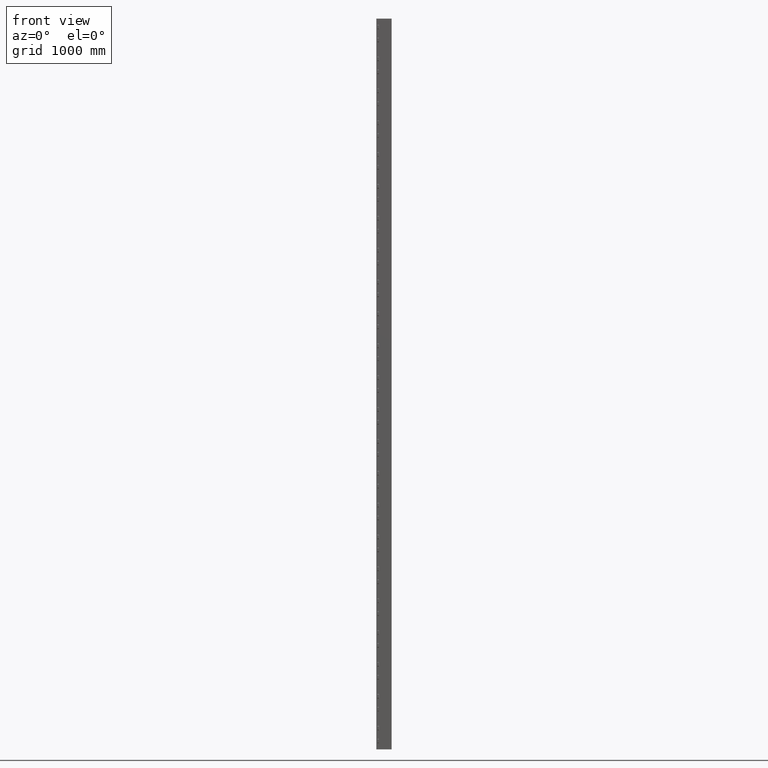
[diagram: clean part render]
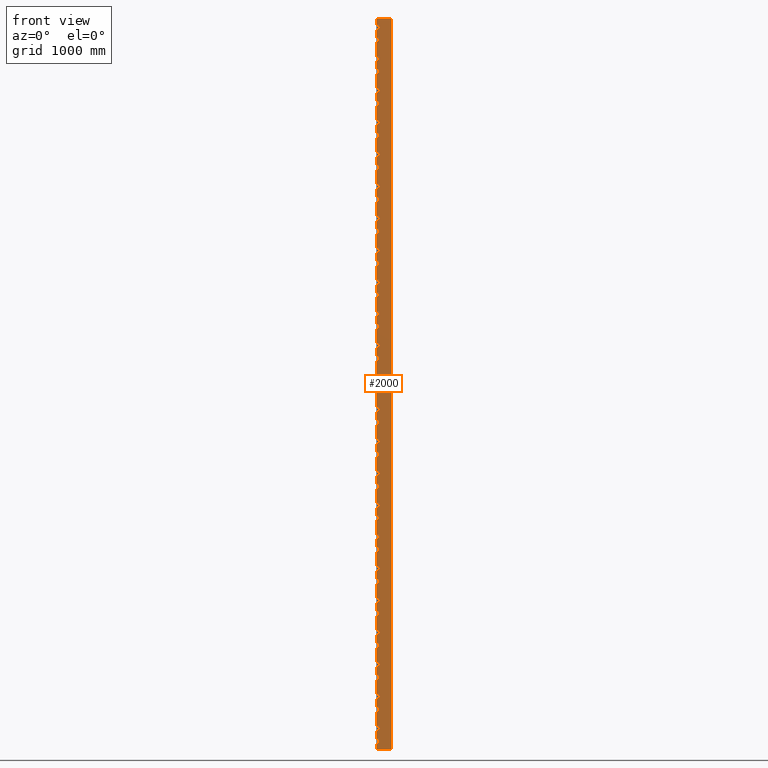
[diagram: same view with one face highlighted and labeled with its STEP entity id]
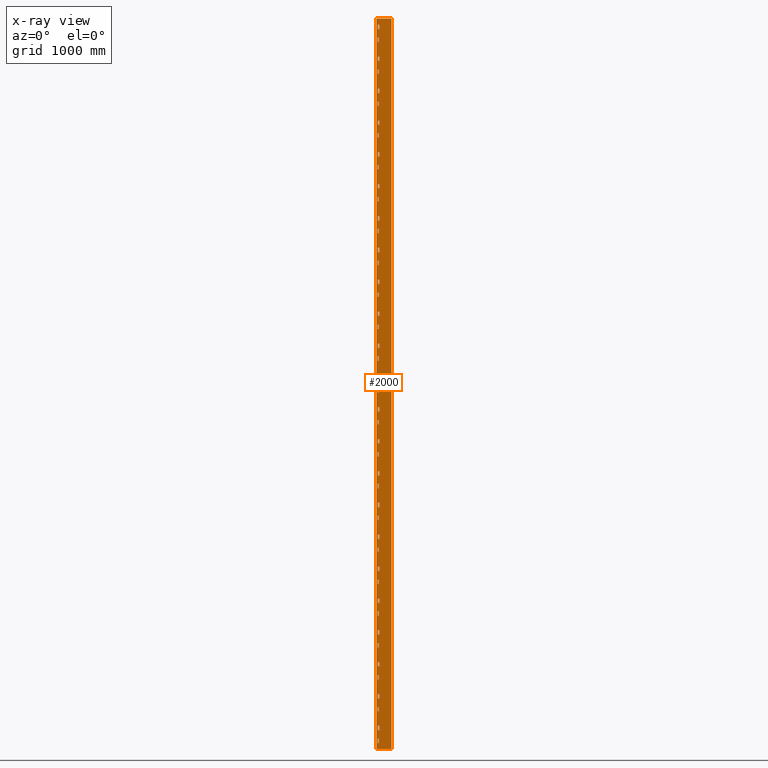
[diagram: x-ray of the same camera — body ghosted, the highlighted face saturated]
A machine part, front view. The second image highlights one B-rep face of the part: STEP entity #2000.
The next image is the same camera in x-ray: the body ghosted, the highlighted face saturated — about 0% of this face is hidden behind the body in this view.
In plain terms, the highlighted planar face has unit normal (0, -1, 0).
Its self-contained STEP definition (entity closure, byte-faithful):
#196=CARTESIAN_POINT('',(6701.0208871468076,6046.4066631202095,-10000.0));
#197=VERTEX_POINT('',#196);
#205=CARTESIAN_POINT('',(6701.0208871468076,6046.4066631202095,90.0));
#206=VERTEX_POINT('',#205);
#207=CARTESIAN_POINT('',(6701.0208871468076,6046.4066631202095,-10000.0));
#208=DIRECTION('',(0.0,0.0,1.0));
#209=VECTOR('',#208,10090.0);
#210=LINE('',#207,#209);
#211=EDGE_CURVE('',#197,#206,#210,.T.);
#236=CARTESIAN_POINT('',(6907.0208871468167,6046.4066631202568,-10000.0));
#237=VERTEX_POINT('',#236);
#246=CARTESIAN_POINT('',(6907.0208871468167,6046.4066631202568,90.0));
#247=VERTEX_POINT('',#246);
#255=CARTESIAN_POINT('',(6907.0208871468167,6046.4066631202568,90.0));
#256=DIRECTION('',(0.0,0.0,-1.0));
#257=VECTOR('',#256,10090.0);
#258=LINE('',#255,#257);
#259=EDGE_CURVE('',#247,#237,#258,.T.);
#388=CARTESIAN_POINT('',(6701.0208871468076,6046.4066631201786,-10000.0));
#389=DIRECTION('',(1.0,3.796920E-013,0.0));
#390=VECTOR('',#389,206.00000000000909);
#391=LINE('',#388,#390);
#392=EDGE_CURVE('',#197,#237,#391,.T.);
#409=CARTESIAN_POINT('',(6907.0208871468167,6046.4066631202468,90.0));
#410=DIRECTION('',(-1.0,-1.766009E-013,0.0));
#411=VECTOR('',#410,206.00000000000909);
#412=LINE('',#409,#411);
#413=EDGE_CURVE('',#247,#206,#412,.T.);
#425=CARTESIAN_POINT('',(6698.0208871468094,6046.4066631202095,0.0));
#426=DIRECTION('',(0.0,-1.0,0.0));
#427=DIRECTION('',(0.0,0.0,-1.0));
#428=AXIS2_PLACEMENT_3D('',#425,#426,#427);
#429=PLANE('',#428);
#430=ORIENTED_EDGE('',*,*,#413,.T.);
#431=ORIENTED_EDGE('',*,*,#211,.F.);
#432=ORIENTED_EDGE('',*,*,#392,.T.);
#433=ORIENTED_EDGE('',*,*,#259,.F.);
#434=EDGE_LOOP('',(#430,#431,#432,#433));
#435=FACE_OUTER_BOUND('',#434,.T.);
#436=CARTESIAN_POINT('',(6713.0208871479335,6046.4066631202149,-613.99999999999864));
#437=VERTEX_POINT('',#436);
#438=CARTESIAN_POINT('',(6713.0208871479335,6046.4066631202149,-673.99999999999955));
#439=VERTEX_POINT('',#438);
#440=CARTESIAN_POINT('',(6713.0208871479335,6046.4066631202149,-613.99999999999864));
#441=DIRECTION('',(0.0,0.0,-1.0));
#442=VECTOR('',#441,60.000000000000909);
#443=LINE('',#440,#442);
#444=EDGE_CURVE('',#437,#439,#443,.T.);
#445=ORIENTED_EDGE('',*,*,#444,.F.);
#446=CARTESIAN_POINT('',(6733.0208871479335,6046.4066631202204,-613.99999999999864));
#447=VERTEX_POINT('',#446);
#448=CARTESIAN_POINT('',(6733.0208871479335,6046.4066631202204,-613.99999999999864));
#449=DIRECTION('',(-1.0,-2.728484E-013,0.0));
#450=VECTOR('',#449,20.0);
#451=LINE('',#448,#450);
#452=EDGE_CURVE('',#447,#437,#451,.T.);
#453=ORIENTED_EDGE('',*,*,#452,.F.);
#454=CARTESIAN_POINT('',(6733.0208871479335,6046.4066631202204,-673.99999999999955));
#455=VERTEX_POINT('',#454);
#456=CARTESIAN_POINT('',(6733.0208871479335,6046.4066631202204,-673.99999999999955));
#457=DIRECTION('',(0.0,0.0,1.0));
#458=VECTOR('',#457,60.000000000000909);
#459=LINE('',#456,#458);
#460=EDGE_CURVE('',#455,#447,#459,.T.);
#461=ORIENTED_EDGE('',*,*,#460,.F.);
#462=CARTESIAN_POINT('',(6713.0208871479335,6046.4066631202149,-673.99999999999955));
#463=DIRECTION('',(1.0,2.728484E-013,0.0));
#464=VECTOR('',#463,20.0);
#465=LINE('',#462,#464);
#466=EDGE_CURVE('',#439,#455,#465,.T.);
#467=ORIENTED_EDGE('',*,*,#466,.F.);
#468=EDGE_LOOP('',(#445,#453,#461,#467));
#469=FACE_BOUND('',#468,.T.);
#470=CARTESIAN_POINT('',(6733.0208871479335,6046.4066631202204,-9853.9999999999964));
#471=VERTEX_POINT('',#470);
#472=CARTESIAN_POINT('',(6713.0208871479335,6046.4066631202149,-9853.9999999999964));
#473=VERTEX_POINT('',#472);
#474=CARTESIAN_POINT('',(6733.0208871479335,6046.4066631202204,-9853.9999999999964));
#475=DIRECTION('',(-1.0,-2.728484E-013,0.0));
#476=VECTOR('',#475,20.0);
#477=LINE('',#474,#476);
#478=EDGE_CURVE('',#471,#473,#477,.T.);
#479=ORIENTED_EDGE('',*,*,#478,.F.);
#480=CARTESIAN_POINT('',(6733.0208871479335,6046.4066631202204,-9914.0));
#481=VERTEX_POINT('',#480);
#482=CARTESIAN_POINT('',(6733.0208871479335,6046.4066631202204,-9914.0));
#483=DIRECTION('',(0.0,0.0,1.0));
#484=VECTOR('',#483,60.000000000003638);
#485=LINE('',#482,#484);
#486=EDGE_CURVE('',#481,#471,#485,.T.);
#487=ORIENTED_EDGE('',*,*,#486,.F.);
#488=CARTESIAN_POINT('',(6713.0208871479335,6046.4066631202149,-9914.0));
#489=VERTEX_POINT('',#488);
#490=CARTESIAN_POINT('',(6713.0208871479335,6046.4066631202149,-9914.0));
#491=DIRECTION('',(1.0,2.728484E-013,0.0));
#492=VECTOR('',#491,20.0);
#493=LINE('',#490,#492);
#494=EDGE_CURVE('',#489,#481,#493,.T.);
#495=ORIENTED_EDGE('',*,*,#494,.F.);
#496=CARTESIAN_POINT('',(6713.0208871479335,6046.4066631202149,-9853.9999999999964));
#497=DIRECTION('',(0.0,0.0,-1.0));
#498=VECTOR('',#497,60.000000000003638);
#499=LINE('',#496,#498);
#500=EDGE_CURVE('',#473,#489,#499,.T.);
#501=ORIENTED_EDGE('',*,*,#500,.F.);
#502=EDGE_LOOP('',(#479,#487,#495,#501));
#503=FACE_BOUND('',#502,.T.);
#504=CARTESIAN_POINT('',(6713.0208871479335,6046.4066631202149,-1053.9999999999993));
#505=VERTEX_POINT('',#504);
#506=CARTESIAN_POINT('',(6713.0208871479335,6046.4066631202149,-1114.0));
#507=VERTEX_POINT('',#506);
#508=CARTESIAN_POINT('',(6713.0208871479335,6046.4066631202149,-1053.9999999999993));
#509=DIRECTION('',(0.0,0.0,-1.0));
#510=VECTOR('',#509,60.000000000000682);
#511=LINE('',#508,#510);
#512=EDGE_CURVE('',#505,#507,#511,.T.);
#513=ORIENTED_EDGE('',*,*,#512,.F.);
#514=CARTESIAN_POINT('',(6733.0208871479335,6046.4066631202204,-1053.9999999999993));
#515=VERTEX_POINT('',#514);
#516=CARTESIAN_POINT('',(6733.0208871479335,6046.4066631202204,-1053.9999999999993));
#517=DIRECTION('',(-1.0,-2.728484E-013,0.0));
#518=VECTOR('',#517,20.0);
#519=LINE('',#516,#518);
#520=EDGE_CURVE('',#515,#505,#519,.T.);
#521=ORIENTED_EDGE('',*,*,#520,.F.);
#522=CARTESIAN_POINT('',(6733.0208871479335,6046.4066631202204,-1114.0));
#523=VERTEX_POINT('',#522);
#524=CARTESIAN_POINT('',(6733.0208871479335,6046.4066631202204,-1114.0));
#525=DIRECTION('',(0.0,0.0,1.0));
#526=VECTOR('',#525,60.000000000000682);
#527=LINE('',#524,#526);
#528=EDGE_CURVE('',#523,#515,#527,.T.);
#529=ORIENTED_EDGE('',*,*,#528,.F.);
#530=CARTESIAN_POINT('',(6713.0208871479335,6046.4066631202149,-1114.0));
#531=DIRECTION('',(1.0,2.728484E-013,0.0));
#532=VECTOR('',#531,20.0);
#533=LINE('',#530,#532);
#534=EDGE_CURVE('',#507,#523,#533,.T.);
#535=ORIENTED_EDGE('',*,*,#534,.F.);
#536=EDGE_LOOP('',(#513,#521,#529,#535));
#537=FACE_BOUND('',#536,.T.);
#538=CARTESIAN_POINT('',(6733.0208871479335,6046.4066631202204,-9414.0));
#539=VERTEX_POINT('',#538);
#540=CARTESIAN_POINT('',(6713.0208871479335,6046.4066631202149,-9414.0));
#541=VERTEX_POINT('',#540);
#542=CARTESIAN_POINT('',(6733.0208871479335,6046.4066631202204,-9414.0));
#543=DIRECTION('',(-1.0,-2.728484E-013,0.0));
#544=VECTOR('',#543,20.0);
#545=LINE('',#542,#544);
#546=EDGE_CURVE('',#539,#541,#545,.T.);
#547=ORIENTED_EDGE('',*,*,#546,.F.);
#548=CARTESIAN_POINT('',(6733.0208871479335,6046.4066631202204,-9474.0));
#549=VERTEX_POINT('',#548);
#550=CARTESIAN_POINT('',(6733.0208871479335,6046.4066631202204,-9474.0));
#551=DIRECTION('',(0.0,0.0,1.0));
#552=VECTOR('',#551,60.0);
#553=LINE('',#550,#552);
#554=EDGE_CURVE('',#549,#539,#553,.T.);
#555=ORIENTED_EDGE('',*,*,#554,.F.);
#556=CARTESIAN_POINT('',(6713.0208871479335,6046.4066631202149,-9474.0));
#557=VERTEX_POINT('',#556);
#558=CARTESIAN_POINT('',(6713.0208871479335,6046.4066631202149,-9474.0));
#559=DIRECTION('',(1.0,2.728484E-013,0.0));
#560=VECTOR('',#559,20.0);
#561=LINE('',#558,#560);
#562=EDGE_CURVE('',#557,#549,#561,.T.);
#563=ORIENTED_EDGE('',*,*,#562,.F.);
#564=CARTESIAN_POINT('',(6713.0208871479335,6046.4066631202149,-9414.0));
#565=DIRECTION('',(0.0,0.0,-1.0));
#566=VECTOR('',#565,60.0);
#567=LINE('',#564,#566);
#568=EDGE_CURVE('',#541,#557,#567,.T.);
#569=ORIENTED_EDGE('',*,*,#568,.F.);
#570=EDGE_LOOP('',(#547,#555,#563,#569));
#571=FACE_BOUND('',#570,.T.);
#572=CARTESIAN_POINT('',(6713.0208871479335,6046.4066631202149,-1493.9999999999982));
#573=VERTEX_POINT('',#572);
#574=CARTESIAN_POINT('',(6713.0208871479335,6046.4066631202149,-1553.9999999999995));
#575=VERTEX_POINT('',#574);
#576=CARTESIAN_POINT('',(6713.0208871479335,6046.4066631202149,-1493.9999999999982));
#577=DIRECTION('',(0.0,0.0,-1.0));
#578=VECTOR('',#577,60.000000000001364);
#579=LINE('',#576,#578);
#580=EDGE_CURVE('',#573,#575,#579,.T.);
#581=ORIENTED_EDGE('',*,*,#580,.F.);
#582=CARTESIAN_POINT('',(6733.0208871479335,6046.4066631202204,-1493.9999999999982));
#583=VERTEX_POINT('',#582);
#584=CARTESIAN_POINT('',(6733.0208871479335,6046.4066631202204,-1493.9999999999982));
#585=DIRECTION('',(-1.0,-2.728484E-013,0.0));
#586=VECTOR('',#585,20.0);
#587=LINE('',#584,#586);
#588=EDGE_CURVE('',#583,#573,#587,.T.);
#589=ORIENTED_EDGE('',*,*,#588,.F.);
#590=CARTESIAN_POINT('',(6733.0208871479335,6046.4066631202204,-1553.9999999999995));
#591=VERTEX_POINT('',#590);
#592=CARTESIAN_POINT('',(6733.0208871479335,6046.4066631202204,-1553.9999999999995));
#593=DIRECTION('',(0.0,0.0,1.0));
#594=VECTOR('',#593,60.000000000001364);
#595=LINE('',#592,#594);
#596=EDGE_CURVE('',#591,#583,#595,.T.);
#597=ORIENTED_EDGE('',*,*,#596,.F.);
#598=CARTESIAN_POINT('',(6713.0208871479335,6046.4066631202149,-1553.9999999999995));
#599=DIRECTION('',(1.0,2.728484E-013,0.0));
#600=VECTOR('',#599,20.0);
#601=LINE('',#598,#600);
#602=EDGE_CURVE('',#575,#591,#601,.T.);
#603=ORIENTED_EDGE('',*,*,#602,.F.);
#604=EDGE_LOOP('',(#581,#589,#597,#603));
#605=FACE_BOUND('',#604,.T.);
#606=CARTESIAN_POINT('',(6733.0208871479335,6046.4066631202204,-8974.0));
#607=VERTEX_POINT('',#606);
#608=CARTESIAN_POINT('',(6713.0208871479335,6046.4066631202149,-8974.0));
#609=VERTEX_POINT('',#608);
#610=CARTESIAN_POINT('',(6733.0208871479335,6046.4066631202204,-8974.0));
#611=DIRECTION('',(-1.0,-2.728484E-013,0.0));
#612=VECTOR('',#611,20.0);
#613=LINE('',#610,#612);
#614=EDGE_CURVE('',#607,#609,#613,.T.);
#615=ORIENTED_EDGE('',*,*,#614,.F.);
#616=CARTESIAN_POINT('',(6733.0208871479335,6046.4066631202204,-9034.0000000000036));
#617=VERTEX_POINT('',#616);
#618=CARTESIAN_POINT('',(6733.0208871479335,6046.4066631202204,-9034.0000000000036));
#619=DIRECTION('',(0.0,0.0,1.0));
#620=VECTOR('',#619,60.000000000001819);
#621=LINE('',#618,#620);
#622=EDGE_CURVE('',#617,#607,#621,.T.);
#623=ORIENTED_EDGE('',*,*,#622,.F.);
#624=CARTESIAN_POINT('',(6713.0208871479335,6046.4066631202149,-9034.0000000000036));
#625=VERTEX_POINT('',#624);
#626=CARTESIAN_POINT('',(6713.0208871479335,6046.4066631202149,-9034.0000000000036));
#627=DIRECTION('',(1.0,2.728484E-013,0.0));
#628=VECTOR('',#627,20.0);
#629=LINE('',#626,#628);
#630=EDGE_CURVE('',#625,#617,#629,.T.);
#631=ORIENTED_EDGE('',*,*,#630,.F.);
#632=CARTESIAN_POINT('',(6713.0208871479335,6046.4066631202149,-8974.0));
#633=DIRECTION('',(0.0,0.0,-1.0));
#634=VECTOR('',#633,60.000000000001819);
#635=LINE('',#632,#634);
#636=EDGE_CURVE('',#609,#625,#635,.T.);
#637=ORIENTED_EDGE('',*,*,#636,.F.);
#638=EDGE_LOOP('',(#615,#623,#631,#637));
#639=FACE_BOUND('',#638,.T.);
#640=CARTESIAN_POINT('',(6713.0208871479335,6046.4066631202149,-1933.9999999999989));
#641=VERTEX_POINT('',#640);
#642=CARTESIAN_POINT('',(6713.0208871479335,6046.4066631202149,-1994.0));
#643=VERTEX_POINT('',#642);
#644=CARTESIAN_POINT('',(6713.0208871479335,6046.4066631202149,-1933.9999999999989));
#645=DIRECTION('',(0.0,0.0,-1.0));
#646=VECTOR('',#645,60.000000000001137);
#647=LINE('',#644,#646);
#648=EDGE_CURVE('',#641,#643,#647,.T.);
#649=ORIENTED_EDGE('',*,*,#648,.F.);
#650=CARTESIAN_POINT('',(6733.0208871479335,6046.4066631202204,-1933.9999999999989));
#651=VERTEX_POINT('',#650);
#652=CARTESIAN_POINT('',(6733.0208871479335,6046.4066631202204,-1933.9999999999989));
#653=DIRECTION('',(-1.0,-2.728484E-013,0.0));
#654=VECTOR('',#653,20.0);
#655=LINE('',#652,#654);
#656=EDGE_CURVE('',#651,#641,#655,.T.);
#657=ORIENTED_EDGE('',*,*,#656,.F.);
#658=CARTESIAN_POINT('',(6733.0208871479335,6046.4066631202204,-1994.0));
#659=VERTEX_POINT('',#658);
#660=CARTESIAN_POINT('',(6733.0208871479335,6046.4066631202204,-1994.0));
#661=DIRECTION('',(0.0,0.0,1.0));
#662=VECTOR('',#661,60.000000000001137);
#663=LINE('',#660,#662);
#664=EDGE_CURVE('',#659,#651,#663,.T.);
#665=ORIENTED_EDGE('',*,*,#664,.F.);
#666=CARTESIAN_POINT('',(6713.0208871479335,6046.4066631202149,-1994.0));
#667=DIRECTION('',(1.0,2.728484E-013,0.0));
#668=VECTOR('',#667,20.0);
#669=LINE('',#666,#668);
#670=EDGE_CURVE('',#643,#659,#669,.T.);
#671=ORIENTED_EDGE('',*,*,#670,.F.);
#672=EDGE_LOOP('',(#649,#657,#665,#671));
#673=FACE_BOUND('',#672,.T.);
#674=CARTESIAN_POINT('',(6733.0208871479335,6046.4066631202204,-8534.0000000000036));
#675=VERTEX_POINT('',#674);
#676=CARTESIAN_POINT('',(6713.0208871479335,6046.4066631202149,-8534.0000000000036));
#677=VERTEX_POINT('',#676);
#678=CARTESIAN_POINT('',(6733.0208871479335,6046.4066631202204,-8534.0000000000036));
#679=DIRECTION('',(-1.0,-2.728484E-013,0.0));
#680=VECTOR('',#679,20.0);
#681=LINE('',#678,#680);
#682=EDGE_CURVE('',#675,#677,#681,.T.);
#683=ORIENTED_EDGE('',*,*,#682,.F.);
#684=CARTESIAN_POINT('',(6733.0208871479335,6046.4066631202204,-8594.0));
#685=VERTEX_POINT('',#684);
#686=CARTESIAN_POINT('',(6733.0208871479335,6046.4066631202204,-8594.0));
#687=DIRECTION('',(0.0,0.0,1.0));
#688=VECTOR('',#687,59.999999999996362);
#689=LINE('',#686,#688);
#690=EDGE_CURVE('',#685,#675,#689,.T.);
#691=ORIENTED_EDGE('',*,*,#690,.F.);
#692=CARTESIAN_POINT('',(6713.0208871479335,6046.4066631202149,-8594.0));
#693=VERTEX_POINT('',#692);
#694=CARTESIAN_POINT('',(6713.0208871479335,6046.4066631202149,-8594.0));
#695=DIRECTION('',(1.0,2.728484E-013,0.0));
#696=VECTOR('',#695,20.0);
#697=LINE('',#694,#696);
#698=EDGE_CURVE('',#693,#685,#697,.T.);
#699=ORIENTED_EDGE('',*,*,#698,.F.);
#700=CARTESIAN_POINT('',(6713.0208871479335,6046.4066631202149,-8534.0000000000036));
#701=DIRECTION('',(0.0,0.0,-1.0));
#702=VECTOR('',#701,59.999999999996362);
#703=LINE('',#700,#702);
#704=EDGE_CURVE('',#677,#693,#703,.T.);
#705=ORIENTED_EDGE('',*,*,#704,.F.);
#706=EDGE_LOOP('',(#683,#691,#699,#705));
#707=FACE_BOUND('',#706,.T.);
#708=CARTESIAN_POINT('',(6713.0208871479335,6046.4066631202149,-2373.9999999999982));
#709=VERTEX_POINT('',#708);
#710=CARTESIAN_POINT('',(6713.0208871479335,6046.4066631202149,-2433.9999999999991));
#711=VERTEX_POINT('',#710);
#712=CARTESIAN_POINT('',(6713.0208871479335,6046.4066631202149,-2373.9999999999982));
#713=DIRECTION('',(0.0,0.0,-1.0));
#714=VECTOR('',#713,60.000000000000909);
#715=LINE('',#712,#714);
#716=EDGE_CURVE('',#709,#711,#715,.T.);
#717=ORIENTED_EDGE('',*,*,#716,.F.);
#718=CARTESIAN_POINT('',(6733.0208871479335,6046.4066631202204,-2373.9999999999982));
#719=VERTEX_POINT('',#718);
#720=CARTESIAN_POINT('',(6733.0208871479335,6046.4066631202204,-2373.9999999999982));
#721=DIRECTION('',(-1.0,-2.728484E-013,0.0));
#722=VECTOR('',#721,20.0);
#723=LINE('',#720,#722);
#724=EDGE_CURVE('',#719,#709,#723,.T.);
#725=ORIENTED_EDGE('',*,*,#724,.F.);
#726=CARTESIAN_POINT('',(6733.0208871479335,6046.4066631202204,-2433.9999999999991));
#727=VERTEX_POINT('',#726);
#728=CARTESIAN_POINT('',(6733.0208871479335,6046.4066631202204,-2433.9999999999991));
#729=DIRECTION('',(0.0,0.0,1.0));
#730=VECTOR('',#729,60.000000000000909);
#731=LINE('',#728,#730);
#732=EDGE_CURVE('',#727,#719,#731,.T.);
#733=ORIENTED_EDGE('',*,*,#732,.F.);
#734=CARTESIAN_POINT('',(6713.0208871479335,6046.4066631202149,-2433.9999999999991));
#735=DIRECTION('',(1.0,2.728484E-013,0.0));
#736=VECTOR('',#735,20.0);
#737=LINE('',#734,#736);
#738=EDGE_CURVE('',#711,#727,#737,.T.);
#739=ORIENTED_EDGE('',*,*,#738,.F.);
#740=EDGE_LOOP('',(#717,#725,#733,#739));
#741=FACE_BOUND('',#740,.T.);
#742=CARTESIAN_POINT('',(6733.0208871479335,6046.4066631202204,-8094.0));
#743=VERTEX_POINT('',#742);
#744=CARTESIAN_POINT('',(6713.0208871479335,6046.4066631202149,-8094.0));
#745=VERTEX_POINT('',#744);
#746=CARTESIAN_POINT('',(6733.0208871479335,6046.4066631202204,-8094.0));
#747=DIRECTION('',(-1.0,-2.728484E-013,0.0));
#748=VECTOR('',#747,20.0);
#749=LINE('',#746,#748);
#750=EDGE_CURVE('',#743,#745,#749,.T.);
#751=ORIENTED_EDGE('',*,*,#750,.F.);
#752=CARTESIAN_POINT('',(6733.0208871479335,6046.4066631202204,-8153.9999999999973));
#753=VERTEX_POINT('',#752);
#754=CARTESIAN_POINT('',(6733.0208871479335,6046.4066631202204,-8153.9999999999973));
#755=DIRECTION('',(0.0,0.0,1.0));
#756=VECTOR('',#755,59.999999999998181);
#757=LINE('',#754,#756);
#758=EDGE_CURVE('',#753,#743,#757,.T.);
#759=ORIENTED_EDGE('',*,*,#758,.F.);
#760=CARTESIAN_POINT('',(6713.0208871479335,6046.4066631202149,-8153.9999999999973));
#761=VERTEX_POINT('',#760);
#762=CARTESIAN_POINT('',(6713.0208871479335,6046.4066631202149,-8153.9999999999973));
#763=DIRECTION('',(1.0,2.728484E-013,0.0));
#764=VECTOR('',#763,20.0);
#765=LINE('',#762,#764);
#766=EDGE_CURVE('',#761,#753,#765,.T.);
#767=ORIENTED_EDGE('',*,*,#766,.F.);
#768=CARTESIAN_POINT('',(6713.0208871479335,6046.4066631202149,-8094.0));
#769=DIRECTION('',(0.0,0.0,-1.0));
#770=VECTOR('',#769,59.999999999998181);
#771=LINE('',#768,#770);
#772=EDGE_CURVE('',#745,#761,#771,.T.);
#773=ORIENTED_EDGE('',*,*,#772,.F.);
#774=EDGE_LOOP('',(#751,#759,#767,#773));
#775=FACE_BOUND('',#774,.T.);
#776=CARTESIAN_POINT('',(6713.0208871479335,6046.4066631202149,-2813.9999999999991));
#777=VERTEX_POINT('',#776);
#778=CARTESIAN_POINT('',(6713.0208871479335,6046.4066631202149,-2874.0));
#779=VERTEX_POINT('',#778);
#780=CARTESIAN_POINT('',(6713.0208871479335,6046.4066631202149,-2813.9999999999991));
#781=DIRECTION('',(0.0,0.0,-1.0));
#782=VECTOR('',#781,60.000000000000455);
#783=LINE('',#780,#782);
#784=EDGE_CURVE('',#777,#779,#783,.T.);
#785=ORIENTED_EDGE('',*,*,#784,.F.);
#786=CARTESIAN_POINT('',(6733.0208871479335,6046.4066631202204,-2813.9999999999991));
#787=VERTEX_POINT('',#786);
#788=CARTESIAN_POINT('',(6733.0208871479335,6046.4066631202204,-2813.9999999999991));
#789=DIRECTION('',(-1.0,-2.728484E-013,0.0));
#790=VECTOR('',#789,20.0);
#791=LINE('',#788,#790);
#792=EDGE_CURVE('',#787,#777,#791,.T.);
#793=ORIENTED_EDGE('',*,*,#792,.F.);
#794=CARTESIAN_POINT('',(6733.0208871479335,6046.4066631202204,-2874.0));
#795=VERTEX_POINT('',#794);
#796=CARTESIAN_POINT('',(6733.0208871479335,6046.4066631202204,-2874.0));
#797=DIRECTION('',(0.0,0.0,1.0));
#798=VECTOR('',#797,60.000000000000455);
#799=LINE('',#796,#798);
#800=EDGE_CURVE('',#795,#787,#799,.T.);
#801=ORIENTED_EDGE('',*,*,#800,.F.);
#802=CARTESIAN_POINT('',(6713.0208871479335,6046.4066631202149,-2874.0));
#803=DIRECTION('',(1.0,2.728484E-013,0.0));
#804=VECTOR('',#803,20.0);
#805=LINE('',#802,#804);
#806=EDGE_CURVE('',#779,#795,#805,.T.);
#807=ORIENTED_EDGE('',*,*,#806,.F.);
#808=EDGE_LOOP('',(#785,#793,#801,#807));
#809=FACE_BOUND('',#808,.T.);
#810=CARTESIAN_POINT('',(6733.0208871479335,6046.4066631202204,-7653.9999999999973));
#811=VERTEX_POINT('',#810);
#812=CARTESIAN_POINT('',(6713.0208871479335,6046.4066631202149,-7653.9999999999973));
#813=VERTEX_POINT('',#812);
#814=CARTESIAN_POINT('',(6733.0208871479335,6046.4066631202204,-7653.9999999999973));
#815=DIRECTION('',(-1.0,-2.728484E-013,0.0));
#816=VECTOR('',#815,20.0);
#817=LINE('',#814,#816);
#818=EDGE_CURVE('',#811,#813,#817,.T.);
#819=ORIENTED_EDGE('',*,*,#818,.F.);
#820=CARTESIAN_POINT('',(6733.0208871479335,6046.4066631202204,-7713.9999999999982));
#821=VERTEX_POINT('',#820);
#822=CARTESIAN_POINT('',(6733.0208871479335,6046.4066631202204,-7713.9999999999982));
#823=DIRECTION('',(0.0,0.0,1.0));
#824=VECTOR('',#823,60.000000000000909);
#825=LINE('',#822,#824);
#826=EDGE_CURVE('',#821,#811,#825,.T.);
#827=ORIENTED_EDGE('',*,*,#826,.F.);
#828=CARTESIAN_POINT('',(6713.0208871479335,6046.4066631202149,-7713.9999999999982));
#829=VERTEX_POINT('',#828);
#830=CARTESIAN_POINT('',(6713.0208871479335,6046.4066631202149,-7713.9999999999982));
#831=DIRECTION('',(1.0,2.728484E-013,0.0));
#832=VECTOR('',#831,20.0);
#833=LINE('',#830,#832);
#834=EDGE_CURVE('',#829,#821,#833,.T.);
#835=ORIENTED_EDGE('',*,*,#834,.F.);
#836=CARTESIAN_POINT('',(6713.0208871479335,6046.4066631202149,-7653.9999999999973));
#837=DIRECTION('',(0.0,0.0,-1.0));
#838=VECTOR('',#837,60.000000000000909);
#839=LINE('',#836,#838);
#840=EDGE_CURVE('',#813,#829,#839,.T.);
#841=ORIENTED_EDGE('',*,*,#840,.F.);
#842=EDGE_LOOP('',(#819,#827,#835,#841));
#843=FACE_BOUND('',#842,.T.);
#844=CARTESIAN_POINT('',(6713.0208871479335,6046.4066631202149,-3253.9999999999991));
#845=VERTEX_POINT('',#844);
#846=CARTESIAN_POINT('',(6713.0208871479335,6046.4066631202149,-3314.0));
#847=VERTEX_POINT('',#846);
#848=CARTESIAN_POINT('',(6713.0208871479335,6046.4066631202149,-3253.9999999999991));
#849=DIRECTION('',(0.0,0.0,-1.0));
#850=VECTOR('',#849,60.000000000000909);
#851=LINE('',#848,#850);
#852=EDGE_CURVE('',#845,#847,#851,.T.);
#853=ORIENTED_EDGE('',*,*,#852,.F.);
#854=CARTESIAN_POINT('',(6733.0208871479335,6046.4066631202204,-3253.9999999999991));
#855=VERTEX_POINT('',#854);
#856=CARTESIAN_POINT('',(6733.0208871479335,6046.4066631202204,-3253.9999999999991));
#857=DIRECTION('',(-1.0,-2.728484E-013,0.0));
#858=VECTOR('',#857,20.0);
#859=LINE('',#856,#858);
#860=EDGE_CURVE('',#855,#845,#859,.T.);
#861=ORIENTED_EDGE('',*,*,#860,.F.);
#862=CARTESIAN_POINT('',(6733.0208871479335,6046.4066631202204,-3314.0));
#863=VERTEX_POINT('',#862);
#864=CARTESIAN_POINT('',(6733.0208871479335,6046.4066631202204,-3314.0));
#865=DIRECTION('',(0.0,0.0,1.0));
#866=VECTOR('',#865,60.000000000000909);
#867=LINE('',#864,#866);
#868=EDGE_CURVE('',#863,#855,#867,.T.);
#869=ORIENTED_EDGE('',*,*,#868,.F.);
#870=CARTESIAN_POINT('',(6713.0208871479335,6046.4066631202149,-3314.0));
#871=DIRECTION('',(1.0,2.728484E-013,0.0));
#872=VECTOR('',#871,20.0);
#873=LINE('',#870,#872);
#874=EDGE_CURVE('',#847,#863,#873,.T.);
#875=ORIENTED_EDGE('',*,*,#874,.F.);
#876=EDGE_LOOP('',(#853,#861,#869,#875));
#877=FACE_BOUND('',#876,.T.);
#878=CARTESIAN_POINT('',(6733.0208871479335,6046.4066631202204,-7214.0));
#879=VERTEX_POINT('',#878);
#880=CARTESIAN_POINT('',(6713.0208871479335,6046.4066631202149,-7214.0));
#881=VERTEX_POINT('',#880);
#882=CARTESIAN_POINT('',(6733.0208871479335,6046.4066631202204,-7214.0));
#883=DIRECTION('',(-1.0,-2.728484E-013,0.0));
#884=VECTOR('',#883,20.0);
#885=LINE('',#882,#884);
#886=EDGE_CURVE('',#879,#881,#885,.T.);
#887=ORIENTED_EDGE('',*,*,#886,.F.);
#888=CARTESIAN_POINT('',(6733.0208871479335,6046.4066631202204,-7274.0));
#889=VERTEX_POINT('',#888);
#890=CARTESIAN_POINT('',(6733.0208871479335,6046.4066631202204,-7274.0));
#891=DIRECTION('',(0.0,0.0,1.0));
#892=VECTOR('',#891,59.999999999999091);
#893=LINE('',#890,#892);
#894=EDGE_CURVE('',#889,#879,#893,.T.);
#895=ORIENTED_EDGE('',*,*,#894,.F.);
#896=CARTESIAN_POINT('',(6713.0208871479335,6046.4066631202149,-7274.0));
#897=VERTEX_POINT('',#896);
#898=CARTESIAN_POINT('',(6713.0208871479335,6046.4066631202149,-7274.0));
#899=DIRECTION('',(1.0,2.728484E-013,0.0));
#900=VECTOR('',#899,20.0);
#901=LINE('',#898,#900);
#902=EDGE_CURVE('',#897,#889,#901,.T.);
#903=ORIENTED_EDGE('',*,*,#902,.F.);
#904=CARTESIAN_POINT('',(6713.0208871479335,6046.4066631202149,-7214.0));
#905=DIRECTION('',(0.0,0.0,-1.0));
#906=VECTOR('',#905,59.999999999999091);
#907=LINE('',#904,#906);
#908=EDGE_CURVE('',#881,#897,#907,.T.);
#909=ORIENTED_EDGE('',*,*,#908,.F.);
#910=EDGE_LOOP('',(#887,#895,#903,#909));
#911=FACE_BOUND('',#910,.T.);
#912=CARTESIAN_POINT('',(6713.0208871479335,6046.4066631202149,-3693.9999999999991));
#913=VERTEX_POINT('',#912);
#914=CARTESIAN_POINT('',(6713.0208871479335,6046.4066631202149,-3753.9999999999986));
#915=VERTEX_POINT('',#914);
#916=CARTESIAN_POINT('',(6713.0208871479335,6046.4066631202149,-3693.9999999999991));
#917=DIRECTION('',(0.0,0.0,-1.0));
#918=VECTOR('',#917,59.999999999999545);
#919=LINE('',#916,#918);
#920=EDGE_CURVE('',#913,#915,#919,.T.);
#921=ORIENTED_EDGE('',*,*,#920,.F.);
#922=CARTESIAN_POINT('',(6733.0208871479335,6046.4066631202204,-3693.9999999999991));
#923=VERTEX_POINT('',#922);
#924=CARTESIAN_POINT('',(6733.0208871479335,6046.4066631202204,-3693.9999999999991));
#925=DIRECTION('',(-1.0,-2.728484E-013,0.0));
#926=VECTOR('',#925,20.0);
#927=LINE('',#924,#926);
#928=EDGE_CURVE('',#923,#913,#927,.T.);
#929=ORIENTED_EDGE('',*,*,#928,.F.);
#930=CARTESIAN_POINT('',(6733.0208871479335,6046.4066631202204,-3753.9999999999986));
#931=VERTEX_POINT('',#930);
#932=CARTESIAN_POINT('',(6733.0208871479335,6046.4066631202204,-3753.9999999999986));
#933=DIRECTION('',(0.0,0.0,1.0));
#934=VECTOR('',#933,59.999999999999545);
#935=LINE('',#932,#934);
#936=EDGE_CURVE('',#931,#923,#935,.T.);
#937=ORIENTED_EDGE('',*,*,#936,.F.);
#938=CARTESIAN_POINT('',(6713.0208871479335,6046.4066631202149,-3753.9999999999986));
#939=DIRECTION('',(1.0,2.728484E-013,0.0));
#940=VECTOR('',#939,20.0);
#941=LINE('',#938,#940);
#942=EDGE_CURVE('',#915,#931,#941,.T.);
#943=ORIENTED_EDGE('',*,*,#942,.F.);
#944=EDGE_LOOP('',(#921,#929,#937,#943));
#945=FACE_BOUND('',#944,.T.);
#946=CARTESIAN_POINT('',(6733.0208871479335,6046.4066631202204,-6774.0));
#947=VERTEX_POINT('',#946);
#948=CARTESIAN_POINT('',(6713.0208871479335,6046.4066631202149,-6774.0));
#949=VERTEX_POINT('',#948);
#950=CARTESIAN_POINT('',(6733.0208871479335,6046.4066631202204,-6774.0));
#951=DIRECTION('',(-1.0,-2.728484E-013,0.0));
#952=VECTOR('',#951,20.0);
#953=LINE('',#950,#952);
#954=EDGE_CURVE('',#947,#949,#953,.T.);
#955=ORIENTED_EDGE('',*,*,#954,.F.);
#956=CARTESIAN_POINT('',(6733.0208871479335,6046.4066631202204,-6833.9999999999982));
#957=VERTEX_POINT('',#956);
#958=CARTESIAN_POINT('',(6733.0208871479335,6046.4066631202204,-6833.9999999999982));
#959=DIRECTION('',(0.0,0.0,1.0));
#960=VECTOR('',#959,59.999999999999091);
#961=LINE('',#958,#960);
#962=EDGE_CURVE('',#957,#947,#961,.T.);
#963=ORIENTED_EDGE('',*,*,#962,.F.);
#964=CARTESIAN_POINT('',(6713.0208871479335,6046.4066631202149,-6833.9999999999982));
#965=VERTEX_POINT('',#964);
#966=CARTESIAN_POINT('',(6713.0208871479335,6046.4066631202149,-6833.9999999999982));
#967=DIRECTION('',(1.0,2.728484E-013,0.0));
#968=VECTOR('',#967,20.0);
#969=LINE('',#966,#968);
#970=EDGE_CURVE('',#965,#957,#969,.T.);
#971=ORIENTED_EDGE('',*,*,#970,.F.);
#972=CARTESIAN_POINT('',(6713.0208871479335,6046.4066631202149,-6774.0));
#973=DIRECTION('',(0.0,0.0,-1.0));
#974=VECTOR('',#973,59.999999999999091);
#975=LINE('',#972,#974);
#976=EDGE_CURVE('',#949,#965,#975,.T.);
#977=ORIENTED_EDGE('',*,*,#976,.F.);
#978=EDGE_LOOP('',(#955,#963,#971,#977));
#979=FACE_BOUND('',#978,.T.);
#980=CARTESIAN_POINT('',(6713.0208871479335,6046.4066631202149,-4134.0));
#981=VERTEX_POINT('',#980);
#982=CARTESIAN_POINT('',(6713.0208871479335,6046.4066631202149,-4194.0));
#983=VERTEX_POINT('',#982);
#984=CARTESIAN_POINT('',(6713.0208871479335,6046.4066631202149,-4134.0));
#985=DIRECTION('',(0.0,0.0,-1.0));
#986=VECTOR('',#985,59.999999999999091);
#987=LINE('',#984,#986);
#988=EDGE_CURVE('',#981,#983,#987,.T.);
#989=ORIENTED_EDGE('',*,*,#988,.F.);
#990=CARTESIAN_POINT('',(6733.0208871479335,6046.4066631202204,-4134.0));
#991=VERTEX_POINT('',#990);
#992=CARTESIAN_POINT('',(6733.0208871479335,6046.4066631202204,-4134.0));
#993=DIRECTION('',(-1.0,-2.728484E-013,0.0));
#994=VECTOR('',#993,20.0);
#995=LINE('',#992,#994);
#996=EDGE_CURVE('',#991,#981,#995,.T.);
#997=ORIENTED_EDGE('',*,*,#996,.F.);
#998=CARTESIAN_POINT('',(6733.0208871479335,6046.4066631202204,-4194.0));
#999=VERTEX_POINT('',#998);
#1000=CARTESIAN_POINT('',(6733.0208871479335,6046.4066631202204,-4194.0));
#1001=DIRECTION('',(0.0,0.0,1.0));
#1002=VECTOR('',#1001,59.999999999999091);
#1003=LINE('',#1000,#1002);
#1004=EDGE_CURVE('',#999,#991,#1003,.T.);
#1005=ORIENTED_EDGE('',*,*,#1004,.F.);
#1006=CARTESIAN_POINT('',(6713.0208871479335,6046.4066631202149,-4194.0));
#1007=DIRECTION('',(1.0,2.728484E-013,0.0));
#1008=VECTOR('',#1007,20.0);
#1009=LINE('',#1006,#1008);
#1010=EDGE_CURVE('',#983,#999,#1009,.T.);
#1011=ORIENTED_EDGE('',*,*,#1010,.F.);
#1012=EDGE_LOOP('',(#989,#997,#1005,#1011));
#1013=FACE_BOUND('',#1012,.T.);
#1014=CARTESIAN_POINT('',(6733.0208871479335,6046.4066631202204,-6334.0000000000009));
#1015=VERTEX_POINT('',#1014);
#1016=CARTESIAN_POINT('',(6713.0208871479335,6046.4066631202149,-6334.0000000000009));
#1017=VERTEX_POINT('',#1016);
#1018=CARTESIAN_POINT('',(6733.0208871479335,6046.4066631202204,-6334.0000000000009));
#1019=DIRECTION('',(-1.0,-2.728484E-013,0.0));
#1020=VECTOR('',#1019,20.0);
#1021=LINE('',#1018,#1020);
#1022=EDGE_CURVE('',#1015,#1017,#1021,.T.);
#1023=ORIENTED_EDGE('',*,*,#1022,.F.);
#1024=CARTESIAN_POINT('',(6733.0208871479335,6046.4066631202204,-6393.9999999999982));
#1025=VERTEX_POINT('',#1024);
#1026=CARTESIAN_POINT('',(6733.0208871479335,6046.4066631202204,-6393.9999999999982));
#1027=DIRECTION('',(0.0,0.0,1.0));
#1028=VECTOR('',#1027,59.999999999999091);
#1029=LINE('',#1026,#1028);
#1030=EDGE_CURVE('',#1025,#1015,#1029,.T.);
#1031=ORIENTED_EDGE('',*,*,#1030,.F.);
#1032=CARTESIAN_POINT('',(6713.0208871479335,6046.4066631202149,-6393.9999999999982));
#1033=VERTEX_POINT('',#1032);
#1034=CARTESIAN_POINT('',(6713.0208871479335,6046.4066631202149,-6393.9999999999982));
#1035=DIRECTION('',(1.0,2.728484E-013,0.0));
#1036=VECTOR('',#1035,20.0);
#1037=LINE('',#1034,#1036);
#1038=EDGE_CURVE('',#1033,#1025,#1037,.T.);
#1039=ORIENTED_EDGE('',*,*,#1038,.F.);
#1040=CARTESIAN_POINT('',(6713.0208871479335,6046.4066631202149,-6334.0000000000009));
#1041=DIRECTION('',(0.0,0.0,-1.0));
#1042=VECTOR('',#1041,59.999999999999091);
#1043=LINE('',#1040,#1042);
#1044=EDGE_CURVE('',#1017,#1033,#1043,.T.);
#1045=ORIENTED_EDGE('',*,*,#1044,.F.);
#1046=EDGE_LOOP('',(#1023,#1031,#1039,#1045));
#1047=FACE_BOUND('',#1046,.T.);
#1048=CARTESIAN_POINT('',(6713.0208871479335,6046.4066631202149,-4574.0));
#1049=VERTEX_POINT('',#1048);
#1050=CARTESIAN_POINT('',(6713.0208871479335,6046.4066631202149,-4634.0));
#1051=VERTEX_POINT('',#1050);
#1052=CARTESIAN_POINT('',(6713.0208871479335,6046.4066631202149,-4574.0));
#1053=DIRECTION('',(0.0,0.0,-1.0));
#1054=VECTOR('',#1053,60.0);
#1055=LINE('',#1052,#1054);
#1056=EDGE_CURVE('',#1049,#1051,#1055,.T.);
#1057=ORIENTED_EDGE('',*,*,#1056,.F.);
#1058=CARTESIAN_POINT('',(6733.0208871479335,6046.4066631202204,-4574.0));
#1059=VERTEX_POINT('',#1058);
#1060=CARTESIAN_POINT('',(6733.0208871479335,6046.4066631202204,-4574.0));
#1061=DIRECTION('',(-1.0,-2.728484E-013,0.0));
#1062=VECTOR('',#1061,20.0);
#1063=LINE('',#1060,#1062);
#1064=EDGE_CURVE('',#1059,#1049,#1063,.T.);
#1065=ORIENTED_EDGE('',*,*,#1064,.F.);
#1066=CARTESIAN_POINT('',(6733.0208871479335,6046.4066631202204,-4634.0));
#1067=VERTEX_POINT('',#1066);
#1068=CARTESIAN_POINT('',(6733.0208871479335,6046.4066631202204,-4634.0));
#1069=DIRECTION('',(0.0,0.0,1.0));
#1070=VECTOR('',#1069,60.0);
#1071=LINE('',#1068,#1070);
#1072=EDGE_CURVE('',#1067,#1059,#1071,.T.);
#1073=ORIENTED_EDGE('',*,*,#1072,.F.);
#1074=CARTESIAN_POINT('',(6713.0208871479335,6046.4066631202149,-4634.0));
#1075=DIRECTION('',(1.0,2.728484E-013,0.0));
#1076=VECTOR('',#1075,20.0);
#1077=LINE('',#1074,#1076);
#1078=EDGE_CURVE('',#1051,#1067,#1077,.T.);
#1079=ORIENTED_EDGE('',*,*,#1078,.F.);
#1080=EDGE_LOOP('',(#1057,#1065,#1073,#1079));
#1081=FACE_BOUND('',#1080,.T.);
#1082=CARTESIAN_POINT('',(6733.0208871479335,6046.4066631202204,-5894.0));
#1083=VERTEX_POINT('',#1082);
#1084=CARTESIAN_POINT('',(6713.0208871479335,6046.4066631202149,-5894.0));
#1085=VERTEX_POINT('',#1084);
#1086=CARTESIAN_POINT('',(6733.0208871479335,6046.4066631202204,-5894.0));
#1087=DIRECTION('',(-1.0,-2.728484E-013,0.0));
#1088=VECTOR('',#1087,20.0);
#1089=LINE('',#1086,#1088);
#1090=EDGE_CURVE('',#1083,#1085,#1089,.T.);
#1091=ORIENTED_EDGE('',*,*,#1090,.F.);
#1092=CARTESIAN_POINT('',(6733.0208871479335,6046.4066631202204,-5954.0));
#1093=VERTEX_POINT('',#1092);
#1094=CARTESIAN_POINT('',(6733.0208871479335,6046.4066631202204,-5954.0));
#1095=DIRECTION('',(0.0,0.0,1.0));
#1096=VECTOR('',#1095,60.0);
#1097=LINE('',#1094,#1096);
#1098=EDGE_CURVE('',#1093,#1083,#1097,.T.);
#1099=ORIENTED_EDGE('',*,*,#1098,.F.);
#1100=CARTESIAN_POINT('',(6713.0208871479335,6046.4066631202149,-5954.0));
#1101=VERTEX_POINT('',#1100);
#1102=CARTESIAN_POINT('',(6713.0208871479335,6046.4066631202149,-5954.0));
#1103=DIRECTION('',(1.0,2.728484E-013,0.0));
#1104=VECTOR('',#1103,20.0);
#1105=LINE('',#1102,#1104);
#1106=EDGE_CURVE('',#1101,#1093,#1105,.T.);
#1107=ORIENTED_EDGE('',*,*,#1106,.F.);
#1108=CARTESIAN_POINT('',(6713.0208871479335,6046.4066631202149,-5894.0));
#1109=DIRECTION('',(0.0,0.0,-1.0));
#1110=VECTOR('',#1109,60.0);
#1111=LINE('',#1108,#1110);
#1112=EDGE_CURVE('',#1085,#1101,#1111,.T.);
#1113=ORIENTED_EDGE('',*,*,#1112,.F.);
#1114=EDGE_LOOP('',(#1091,#1099,#1107,#1113));
#1115=FACE_BOUND('',#1114,.T.);
#1116=CARTESIAN_POINT('',(6713.0208871479335,6046.4066631202149,-5013.9999999999982));
#1117=VERTEX_POINT('',#1116);
#1118=CARTESIAN_POINT('',(6713.0208871479335,6046.4066631202149,-5074.0));
#1119=VERTEX_POINT('',#1118);
#1120=CARTESIAN_POINT('',(6713.0208871479335,6046.4066631202149,-5013.9999999999982));
#1121=DIRECTION('',(0.0,0.0,-1.0));
#1122=VECTOR('',#1121,60.000000000001819);
#1123=LINE('',#1120,#1122);
#1124=EDGE_CURVE('',#1117,#1119,#1123,.T.);
#1125=ORIENTED_EDGE('',*,*,#1124,.F.);
#1126=CARTESIAN_POINT('',(6733.0208871479335,6046.4066631202204,-5013.9999999999982));
#1127=VERTEX_POINT('',#1126);
#1128=CARTESIAN_POINT('',(6733.0208871479335,6046.4066631202204,-5013.9999999999982));
#1129=DIRECTION('',(-1.0,-2.728484E-013,0.0));
#1130=VECTOR('',#1129,20.0);
#1131=LINE('',#1128,#1130);
#1132=EDGE_CURVE('',#1127,#1117,#1131,.T.);
#1133=ORIENTED_EDGE('',*,*,#1132,.F.);
#1134=CARTESIAN_POINT('',(6733.0208871479335,6046.4066631202204,-5074.0));
#1135=VERTEX_POINT('',#1134);
#1136=CARTESIAN_POINT('',(6733.0208871479335,6046.4066631202204,-5074.0));
#1137=DIRECTION('',(0.0,0.0,1.0));
#1138=VECTOR('',#1137,60.000000000001819);
#1139=LINE('',#1136,#1138);
#1140=EDGE_CURVE('',#1135,#1127,#1139,.T.);
#1141=ORIENTED_EDGE('',*,*,#1140,.F.);
#1142=CARTESIAN_POINT('',(6713.0208871479335,6046.4066631202149,-5074.0));
#1143=DIRECTION('',(1.0,2.728484E-013,0.0));
#1144=VECTOR('',#1143,20.0);
#1145=LINE('',#1142,#1144);
#1146=EDGE_CURVE('',#1119,#1135,#1145,.T.);
#1147=ORIENTED_EDGE('',*,*,#1146,.F.);
#1148=EDGE_LOOP('',(#1125,#1133,#1141,#1147));
#1149=FACE_BOUND('',#1148,.T.);
#1150=CARTESIAN_POINT('',(6733.0208871479335,6046.4066631202204,-5454.0));
#1151=VERTEX_POINT('',#1150);
#1152=CARTESIAN_POINT('',(6713.0208871479335,6046.4066631202149,-5454.0));
#1153=VERTEX_POINT('',#1152);
#1154=CARTESIAN_POINT('',(6733.0208871479335,6046.4066631202204,-5454.0));
#1155=DIRECTION('',(-1.0,-2.728484E-013,0.0));
#1156=VECTOR('',#1155,20.0);
#1157=LINE('',#1154,#1156);
#1158=EDGE_CURVE('',#1151,#1153,#1157,.T.);
#1159=ORIENTED_EDGE('',*,*,#1158,.F.);
#1160=CARTESIAN_POINT('',(6733.0208871479335,6046.4066631202204,-5514.0));
#1161=VERTEX_POINT('',#1160);
#1162=CARTESIAN_POINT('',(6733.0208871479335,6046.4066631202204,-5514.0));
#1163=DIRECTION('',(0.0,0.0,1.0));
#1164=VECTOR('',#1163,60.0);
#1165=LINE('',#1162,#1164);
#1166=EDGE_CURVE('',#1161,#1151,#1165,.T.);
#1167=ORIENTED_EDGE('',*,*,#1166,.F.);
#1168=CARTESIAN_POINT('',(6713.0208871479335,6046.4066631202149,-5514.0));
#1169=VERTEX_POINT('',#1168);
#1170=CARTESIAN_POINT('',(6713.0208871479335,6046.4066631202149,-5514.0));
#1171=DIRECTION('',(1.0,2.728484E-013,0.0));
#1172=VECTOR('',#1171,20.0);
#1173=LINE('',#1170,#1172);
#1174=EDGE_CURVE('',#1169,#1161,#1173,.T.);
#1175=ORIENTED_EDGE('',*,*,#1174,.F.);
#1176=CARTESIAN_POINT('',(6713.0208871479335,6046.4066631202149,-5454.0));
#1177=DIRECTION('',(0.0,0.0,-1.0));
#1178=VECTOR('',#1177,60.0);
#1179=LINE('',#1176,#1178);
#1180=EDGE_CURVE('',#1153,#1169,#1179,.T.);
#1181=ORIENTED_EDGE('',*,*,#1180,.F.);
#1182=EDGE_LOOP('',(#1159,#1167,#1175,#1181));
#1183=FACE_BOUND('',#1182,.T.);
#1184=CARTESIAN_POINT('',(6743.0208871479354,6046.4066631202168,3.9999999999662));
#1185=VERTEX_POINT('',#1184);
#1186=CARTESIAN_POINT('',(6714.7366159004723,6046.4066631202149,3.9999999999662));
#1187=VERTEX_POINT('',#1186);
#1188=CARTESIAN_POINT('',(6743.0208871479354,6046.4066631202222,3.9999999999662));
#1189=DIRECTION('',(-1.0,-2.893994E-013,0.0));
#1190=VECTOR('',#1189,28.284271247463039);
#1191=LINE('',#1188,#1190);
#1192=EDGE_CURVE('',#1185,#1187,#1191,.T.);
#1193=ORIENTED_EDGE('',*,*,#1192,.F.);
#1194=CARTESIAN_POINT('',(6743.0208871479354,6046.4066631202168,-56.000000000033801));
#1195=VERTEX_POINT('',#1194);
#1196=CARTESIAN_POINT('',(6743.0208871479354,6046.4066631202168,3.9999999999662));
#1197=DIRECTION('',(0.0,0.0,-1.0));
#1198=VECTOR('',#1197,60.0);
#1199=LINE('',#1196,#1198);
#1200=EDGE_CURVE('',#1185,#1195,#1199,.T.);
#1201=ORIENTED_EDGE('',*,*,#1200,.T.);
#1202=CARTESIAN_POINT('',(6714.7366159004723,6046.4066631202149,-56.000000000033801));
#1203=VERTEX_POINT('',#1202);
#1204=CARTESIAN_POINT('',(6714.7366159004723,6046.4066631202149,-56.000000000033801));
#1205=DIRECTION('',(1.0,2.893994E-013,0.0));
#1206=VECTOR('',#1205,28.284271247463039);
#1207=LINE('',#1204,#1206);
#1208=EDGE_CURVE('',#1203,#1195,#1207,.T.);
#1209=ORIENTED_EDGE('',*,*,#1208,.F.);
#1210=CARTESIAN_POINT('',(6714.7366159004723,6046.4066631202149,3.9999999999662));
#1211=DIRECTION('',(0.0,0.0,-1.0));
#1212=VECTOR('',#1211,60.0);
#1213=LINE('',#1210,#1212);
#1214=EDGE_CURVE('',#1187,#1203,#1213,.T.);
#1215=ORIENTED_EDGE('',*,*,#1214,.F.);
#1216=EDGE_LOOP('',(#1193,#1201,#1209,#1215));
#1217=FACE_BOUND('',#1216,.T.);
#1218=CARTESIAN_POINT('',(6743.0208871479354,6046.4066631202168,-436.00000000003365));
#1219=VERTEX_POINT('',#1218);
#1220=CARTESIAN_POINT('',(6743.0208871479354,6046.4066631202168,-496.00000000003365));
#1221=VERTEX_POINT('',#1220);
#1222=CARTESIAN_POINT('',(6743.0208871479354,6046.4066631202168,-436.00000000003365));
#1223=DIRECTION('',(0.0,0.0,-1.0));
#1224=VECTOR('',#1223,60.000000000000057);
#1225=LINE('',#1222,#1224);
#1226=EDGE_CURVE('',#1219,#1221,#1225,.T.);
#1227=ORIENTED_EDGE('',*,*,#1226,.T.);
#1228=CARTESIAN_POINT('',(6714.7366159004723,6046.4066631202149,-496.00000000003365));
#1229=VERTEX_POINT('',#1228);
#1230=CARTESIAN_POINT('',(6714.7366159004723,6046.4066631202149,-496.00000000003388));
#1231=DIRECTION('',(1.0,2.893994E-013,0.0));
#1232=VECTOR('',#1231,28.284271247463039);
#1233=LINE('',#1230,#1232);
#1234=EDGE_CURVE('',#1229,#1221,#1233,.T.);
#1235=ORIENTED_EDGE('',*,*,#1234,.F.);
#1236=CARTESIAN_POINT('',(6714.7366159004723,6046.4066631202149,-436.00000000003365));
#1237=VERTEX_POINT('',#1236);
#1238=CARTESIAN_POINT('',(6714.7366159004723,6046.4066631202149,-436.00000000003365));
#1239=DIRECTION('',(0.0,0.0,-1.0));
#1240=VECTOR('',#1239,60.000000000000057);
#1241=LINE('',#1238,#1240);
#1242=EDGE_CURVE('',#1237,#1229,#1241,.T.);
#1243=ORIENTED_EDGE('',*,*,#1242,.F.);
#1244=CARTESIAN_POINT('',(6743.0208871479354,6046.4066631202222,-436.00000000003399));
#1245=DIRECTION('',(-1.0,-2.893994E-013,0.0));
#1246=VECTOR('',#1245,28.284271247463039);
#1247=LINE('',#1244,#1246);
#1248=EDGE_CURVE('',#1219,#1237,#1247,.T.);
#1249=ORIENTED_EDGE('',*,*,#1248,.F.);
#1250=EDGE_LOOP('',(#1227,#1235,#1243,#1249));
#1251=FACE_BOUND('',#1250,.T.);
#1252=CARTESIAN_POINT('',(6743.0208871479354,6046.4066631202168,-876.00000000003388));
#1253=VERTEX_POINT('',#1252);
#1254=CARTESIAN_POINT('',(6714.7366159004723,6046.4066631202149,-876.00000000003388));
#1255=VERTEX_POINT('',#1254);
#1256=CARTESIAN_POINT('',(6743.0208871479354,6046.4066631202222,-876.00000000003388));
#1257=DIRECTION('',(-1.0,-2.893994E-013,0.0));
#1258=VECTOR('',#1257,28.284271247463039);
#1259=LINE('',#1256,#1258);
#1260=EDGE_CURVE('',#1253,#1255,#1259,.T.);
#1261=ORIENTED_EDGE('',*,*,#1260,.F.);
#1262=CARTESIAN_POINT('',(6743.0208871479354,6046.4066631202168,-936.00000000003388));
#1263=VERTEX_POINT('',#1262);
#1264=CARTESIAN_POINT('',(6743.0208871479354,6046.4066631202168,-876.00000000003388));
#1265=DIRECTION('',(0.0,0.0,-1.0));
#1266=VECTOR('',#1265,60.0);
#1267=LINE('',#1264,#1266);
#1268=EDGE_CURVE('',#1253,#1263,#1267,.T.);
#1269=ORIENTED_EDGE('',*,*,#1268,.T.);
#1270=CARTESIAN_POINT('',(6714.7366159004723,6046.4066631202149,-936.00000000003388));
#1271=VERTEX_POINT('',#1270);
#1272=CARTESIAN_POINT('',(6714.7366159004723,6046.4066631202149,-936.00000000003388));
#1273=DIRECTION('',(1.0,2.893994E-013,0.0));
#1274=VECTOR('',#1273,28.284271247463039);
#1275=LINE('',#1272,#1274);
#1276=EDGE_CURVE('',#1271,#1263,#1275,.T.);
#1277=ORIENTED_EDGE('',*,*,#1276,.F.);
#1278=CARTESIAN_POINT('',(6714.7366159004723,6046.4066631202149,-876.00000000003388));
#1279=DIRECTION('',(0.0,0.0,-1.0));
#1280=VECTOR('',#1279,60.0);
#1281=LINE('',#1278,#1280);
#1282=EDGE_CURVE('',#1255,#1271,#1281,.T.);
#1283=ORIENTED_EDGE('',*,*,#1282,.F.);
#1284=EDGE_LOOP('',(#1261,#1269,#1277,#1283));
#1285=FACE_BOUND('',#1284,.T.);
#1286=CARTESIAN_POINT('',(6743.0208871479354,6046.4066631202168,-1316.0000000000341));
#1287=VERTEX_POINT('',#1286);
#1288=CARTESIAN_POINT('',(6743.0208871479354,6046.4066631202168,-1376.0000000000337));
#1289=VERTEX_POINT('',#1288);
#1290=CARTESIAN_POINT('',(6743.0208871479354,6046.4066631202168,-1316.0000000000341));
#1291=DIRECTION('',(0.0,0.0,-1.0));
#1292=VECTOR('',#1291,59.999999999999773);
#1293=LINE('',#1290,#1292);
#1294=EDGE_CURVE('',#1287,#1289,#1293,.T.);
#1295=ORIENTED_EDGE('',*,*,#1294,.T.);
#1296=CARTESIAN_POINT('',(6714.7366159004723,6046.4066631202149,-1376.0000000000337));
#1297=VERTEX_POINT('',#1296);
#1298=CARTESIAN_POINT('',(6714.7366159004723,6046.4066631202149,-1376.0000000000337));
#1299=DIRECTION('',(1.0,2.893994E-013,0.0));
#1300=VECTOR('',#1299,28.284271247463039);
#1301=LINE('',#1298,#1300);
#1302=EDGE_CURVE('',#1297,#1289,#1301,.T.);
#1303=ORIENTED_EDGE('',*,*,#1302,.F.);
#1304=CARTESIAN_POINT('',(6714.7366159004723,6046.4066631202149,-1316.0000000000341));
#1305=VERTEX_POINT('',#1304);
#1306=CARTESIAN_POINT('',(6714.7366159004723,6046.4066631202149,-1316.0000000000341));
#1307=DIRECTION('',(0.0,0.0,-1.0));
#1308=VECTOR('',#1307,59.999999999999773);
#1309=LINE('',#1306,#1308);
#1310=EDGE_CURVE('',#1305,#1297,#1309,.T.);
#1311=ORIENTED_EDGE('',*,*,#1310,.F.);
#1312=CARTESIAN_POINT('',(6743.0208871479354,6046.4066631202222,-1316.0000000000341));
#1313=DIRECTION('',(-1.0,-2.893994E-013,0.0));
#1314=VECTOR('',#1313,28.284271247463039);
#1315=LINE('',#1312,#1314);
#1316=EDGE_CURVE('',#1287,#1305,#1315,.T.);
#1317=ORIENTED_EDGE('',*,*,#1316,.F.);
#1318=EDGE_LOOP('',(#1295,#1303,#1311,#1317));
#1319=FACE_BOUND('',#1318,.T.);
#1320=CARTESIAN_POINT('',(6743.0208871479354,6046.4066631202168,-1756.0000000000341));
#1321=VERTEX_POINT('',#1320);
#1322=CARTESIAN_POINT('',(6714.7366159004723,6046.4066631202149,-1756.0000000000341));
#1323=VERTEX_POINT('',#1322);
#1324=CARTESIAN_POINT('',(6743.0208871479354,6046.4066631202222,-1756.0000000000341));
#1325=DIRECTION('',(-1.0,-2.893994E-013,0.0));
#1326=VECTOR('',#1325,28.284271247463039);
#1327=LINE('',#1324,#1326);
#1328=EDGE_CURVE('',#1321,#1323,#1327,.T.);
#1329=ORIENTED_EDGE('',*,*,#1328,.F.);
#1330=CARTESIAN_POINT('',(6743.0208871479354,6046.4066631202168,-1816.0000000000334));
#1331=VERTEX_POINT('',#1330);
#1332=CARTESIAN_POINT('',(6743.0208871479354,6046.4066631202168,-1756.0000000000341));
#1333=DIRECTION('',(0.0,0.0,-1.0));
#1334=VECTOR('',#1333,59.999999999999545);
#1335=LINE('',#1332,#1334);
#1336=EDGE_CURVE('',#1321,#1331,#1335,.T.);
#1337=ORIENTED_EDGE('',*,*,#1336,.T.);
#1338=CARTESIAN_POINT('',(6714.7366159004723,6046.4066631202149,-1816.0000000000334));
#1339=VERTEX_POINT('',#1338);
#1340=CARTESIAN_POINT('',(6714.7366159004723,6046.4066631202149,-1816.0000000000334));
#1341=DIRECTION('',(1.0,2.893994E-013,0.0));
#1342=VECTOR('',#1341,28.284271247463039);
#1343=LINE('',#1340,#1342);
#1344=EDGE_CURVE('',#1339,#1331,#1343,.T.);
#1345=ORIENTED_EDGE('',*,*,#1344,.F.);
#1346=CARTESIAN_POINT('',(6714.7366159004723,6046.4066631202149,-1756.0000000000341));
#1347=DIRECTION('',(0.0,0.0,-1.0));
#1348=VECTOR('',#1347,59.999999999999545);
#1349=LINE('',#1346,#1348);
#1350=EDGE_CURVE('',#1323,#1339,#1349,.T.);
#1351=ORIENTED_EDGE('',*,*,#1350,.F.);
#1352=EDGE_LOOP('',(#1329,#1337,#1345,#1351));
#1353=FACE_BOUND('',#1352,.T.);
#1354=CARTESIAN_POINT('',(6743.0208871479354,6046.4066631202168,-2196.0000000000346));
#1355=VERTEX_POINT('',#1354);
#1356=CARTESIAN_POINT('',(6743.0208871479354,6046.4066631202168,-2256.0000000000341));
#1357=VERTEX_POINT('',#1356);
#1358=CARTESIAN_POINT('',(6743.0208871479354,6046.4066631202168,-2196.0000000000346));
#1359=DIRECTION('',(0.0,0.0,-1.0));
#1360=VECTOR('',#1359,60.0);
#1361=LINE('',#1358,#1360);
#1362=EDGE_CURVE('',#1355,#1357,#1361,.T.);
#1363=ORIENTED_EDGE('',*,*,#1362,.T.);
#1364=CARTESIAN_POINT('',(6714.7366159004723,6046.4066631202149,-2256.0000000000341));
#1365=VERTEX_POINT('',#1364);
#1366=CARTESIAN_POINT('',(6714.7366159004723,6046.4066631202149,-2256.0000000000341));
#1367=DIRECTION('',(1.0,2.893994E-013,0.0));
#1368=VECTOR('',#1367,28.284271247463039);
#1369=LINE('',#1366,#1368);
#1370=EDGE_CURVE('',#1365,#1357,#1369,.T.);
#1371=ORIENTED_EDGE('',*,*,#1370,.F.);
#1372=CARTESIAN_POINT('',(6714.7366159004723,6046.4066631202149,-2196.0000000000346));
#1373=VERTEX_POINT('',#1372);
#1374=CARTESIAN_POINT('',(6714.7366159004723,6046.4066631202149,-2196.0000000000346));
#1375=DIRECTION('',(0.0,0.0,-1.0));
#1376=VECTOR('',#1375,60.0);
#1377=LINE('',#1374,#1376);
#1378=EDGE_CURVE('',#1373,#1365,#1377,.T.);
#1379=ORIENTED_EDGE('',*,*,#1378,.F.);
#1380=CARTESIAN_POINT('',(6743.0208871479354,6046.4066631202222,-2196.0000000000346));
#1381=DIRECTION('',(-1.0,-2.893994E-013,0.0));
#1382=VECTOR('',#1381,28.284271247463039);
#1383=LINE('',#1380,#1382);
#1384=EDGE_CURVE('',#1355,#1373,#1383,.T.);
#1385=ORIENTED_EDGE('',*,*,#1384,.F.);
#1386=EDGE_LOOP('',(#1363,#1371,#1379,#1385));
#1387=FACE_BOUND('',#1386,.T.);
#1388=CARTESIAN_POINT('',(6743.0208871479354,6046.4066631202168,-2636.0000000000346));
#1389=VERTEX_POINT('',#1388);
#1390=CARTESIAN_POINT('',(6714.7366159004723,6046.4066631202149,-2636.0000000000346));
#1391=VERTEX_POINT('',#1390);
#1392=CARTESIAN_POINT('',(6743.0208871479354,6046.4066631202222,-2636.0000000000346));
#1393=DIRECTION('',(-1.0,-2.893994E-013,0.0));
#1394=VECTOR('',#1393,28.284271247463039);
#1395=LINE('',#1392,#1394);
#1396=EDGE_CURVE('',#1389,#1391,#1395,.T.);
#1397=ORIENTED_EDGE('',*,*,#1396,.F.);
#1398=CARTESIAN_POINT('',(6743.0208871479354,6046.4066631202168,-2696.0000000000327));
#1399=VERTEX_POINT('',#1398);
#1400=CARTESIAN_POINT('',(6743.0208871479354,6046.4066631202168,-2636.0000000000346));
#1401=DIRECTION('',(0.0,0.0,-1.0));
#1402=VECTOR('',#1401,59.999999999998181);
#1403=LINE('',#1400,#1402);
#1404=EDGE_CURVE('',#1389,#1399,#1403,.T.);
#1405=ORIENTED_EDGE('',*,*,#1404,.T.);
#1406=CARTESIAN_POINT('',(6714.7366159004723,6046.4066631202149,-2696.0000000000327));
#1407=VERTEX_POINT('',#1406);
#1408=CARTESIAN_POINT('',(6714.7366159004723,6046.4066631202149,-2696.0000000000327));
#1409=DIRECTION('',(1.0,2.893994E-013,0.0));
#1410=VECTOR('',#1409,28.284271247463039);
#1411=LINE('',#1408,#1410);
#1412=EDGE_CURVE('',#1407,#1399,#1411,.T.);
#1413=ORIENTED_EDGE('',*,*,#1412,.F.);
#1414=CARTESIAN_POINT('',(6714.7366159004723,6046.4066631202149,-2636.0000000000346));
#1415=DIRECTION('',(0.0,0.0,-1.0));
#1416=VECTOR('',#1415,59.999999999998181);
#1417=LINE('',#1414,#1416);
#1418=EDGE_CURVE('',#1391,#1407,#1417,.T.);
#1419=ORIENTED_EDGE('',*,*,#1418,.F.);
#1420=EDGE_LOOP('',(#1397,#1405,#1413,#1419));
#1421=FACE_BOUND('',#1420,.T.);
#1422=CARTESIAN_POINT('',(6743.0208871479354,6046.4066631202168,-3076.0000000000346));
#1423=VERTEX_POINT('',#1422);
#1424=CARTESIAN_POINT('',(6743.0208871479354,6046.4066631202168,-3136.0000000000346));
#1425=VERTEX_POINT('',#1424);
#1426=CARTESIAN_POINT('',(6743.0208871479354,6046.4066631202168,-3076.0000000000346));
#1427=DIRECTION('',(0.0,0.0,-1.0));
#1428=VECTOR('',#1427,60.0);
#1429=LINE('',#1426,#1428);
#1430=EDGE_CURVE('',#1423,#1425,#1429,.T.);
#1431=ORIENTED_EDGE('',*,*,#1430,.T.);
#1432=CARTESIAN_POINT('',(6714.7366159004723,6046.4066631202149,-3136.0000000000346));
#1433=VERTEX_POINT('',#1432);
#1434=CARTESIAN_POINT('',(6714.7366159004723,6046.4066631202149,-3136.0000000000346));
#1435=DIRECTION('',(1.0,2.893994E-013,0.0));
#1436=VECTOR('',#1435,28.284271247463039);
#1437=LINE('',#1434,#1436);
#1438=EDGE_CURVE('',#1433,#1425,#1437,.T.);
#1439=ORIENTED_EDGE('',*,*,#1438,.F.);
#1440=CARTESIAN_POINT('',(6714.7366159004723,6046.4066631202149,-3076.0000000000346));
#1441=VERTEX_POINT('',#1440);
#1442=CARTESIAN_POINT('',(6714.7366159004723,6046.4066631202149,-3076.0000000000346));
#1443=DIRECTION('',(0.0,0.0,-1.0));
#1444=VECTOR('',#1443,60.0);
#1445=LINE('',#1442,#1444);
#1446=EDGE_CURVE('',#1441,#1433,#1445,.T.);
#1447=ORIENTED_EDGE('',*,*,#1446,.F.);
#1448=CARTESIAN_POINT('',(6743.0208871479354,6046.4066631202222,-3076.0000000000346));
#1449=DIRECTION('',(-1.0,-2.893994E-013,0.0));
#1450=VECTOR('',#1449,28.284271247463039);
#1451=LINE('',#1448,#1450);
#1452=EDGE_CURVE('',#1423,#1441,#1451,.T.);
#1453=ORIENTED_EDGE('',*,*,#1452,.F.);
#1454=EDGE_LOOP('',(#1431,#1439,#1447,#1453));
#1455=FACE_BOUND('',#1454,.T.);
#1456=CARTESIAN_POINT('',(6743.0208871479354,6046.4066631202168,-3516.0000000000346));
#1457=VERTEX_POINT('',#1456);
#1458=CARTESIAN_POINT('',(6714.7366159004723,6046.4066631202149,-3516.0000000000346));
#1459=VERTEX_POINT('',#1458);
#1460=CARTESIAN_POINT('',(6743.0208871479354,6046.4066631202222,-3516.0000000000346));
#1461=DIRECTION('',(-1.0,-2.893994E-013,0.0));
#1462=VECTOR('',#1461,28.284271247463039);
#1463=LINE('',#1460,#1462);
#1464=EDGE_CURVE('',#1457,#1459,#1463,.T.);
#1465=ORIENTED_EDGE('',*,*,#1464,.F.);
#1466=CARTESIAN_POINT('',(6743.0208871479354,6046.4066631202168,-3576.0000000000337));
#1467=VERTEX_POINT('',#1466);
#1468=CARTESIAN_POINT('',(6743.0208871479354,6046.4066631202168,-3516.0000000000346));
#1469=DIRECTION('',(0.0,0.0,-1.0));
#1470=VECTOR('',#1469,59.999999999999545);
#1471=LINE('',#1468,#1470);
#1472=EDGE_CURVE('',#1457,#1467,#1471,.T.);
#1473=ORIENTED_EDGE('',*,*,#1472,.T.);
#1474=CARTESIAN_POINT('',(6714.7366159004723,6046.4066631202149,-3576.0000000000337));
#1475=VERTEX_POINT('',#1474);
#1476=CARTESIAN_POINT('',(6714.7366159004723,6046.4066631202149,-3576.0000000000337));
#1477=DIRECTION('',(1.0,2.893994E-013,0.0));
#1478=VECTOR('',#1477,28.284271247463039);
#1479=LINE('',#1476,#1478);
#1480=EDGE_CURVE('',#1475,#1467,#1479,.T.);
#1481=ORIENTED_EDGE('',*,*,#1480,.F.);
#1482=CARTESIAN_POINT('',(6714.7366159004723,6046.4066631202149,-3516.0000000000346));
#1483=DIRECTION('',(0.0,0.0,-1.0));
#1484=VECTOR('',#1483,59.999999999999545);
#1485=LINE('',#1482,#1484);
#1486=EDGE_CURVE('',#1459,#1475,#1485,.T.);
#1487=ORIENTED_EDGE('',*,*,#1486,.F.);
#1488=EDGE_LOOP('',(#1465,#1473,#1481,#1487));
#1489=FACE_BOUND('',#1488,.T.);
#1490=CARTESIAN_POINT('',(6743.0208871479354,6046.4066631202168,-3956.0000000000346));
#1491=VERTEX_POINT('',#1490);
#1492=CARTESIAN_POINT('',(6743.0208871479354,6046.4066631202168,-4016.0000000000337));
#1493=VERTEX_POINT('',#1492);
#1494=CARTESIAN_POINT('',(6743.0208871479354,6046.4066631202168,-3956.0000000000346));
#1495=DIRECTION('',(0.0,0.0,-1.0));
#1496=VECTOR('',#1495,59.999999999999545);
#1497=LINE('',#1494,#1496);
#1498=EDGE_CURVE('',#1491,#1493,#1497,.T.);
#1499=ORIENTED_EDGE('',*,*,#1498,.T.);
#1500=CARTESIAN_POINT('',(6714.7366159004723,6046.4066631202149,-4016.0000000000337));
#1501=VERTEX_POINT('',#1500);
#1502=CARTESIAN_POINT('',(6714.7366159004723,6046.4066631202149,-4016.0000000000337));
#1503=DIRECTION('',(1.0,2.893994E-013,0.0));
#1504=VECTOR('',#1503,28.284271247463039);
#1505=LINE('',#1502,#1504);
#1506=EDGE_CURVE('',#1501,#1493,#1505,.T.);
#1507=ORIENTED_EDGE('',*,*,#1506,.F.);
#1508=CARTESIAN_POINT('',(6714.7366159004723,6046.4066631202149,-3956.0000000000346));
#1509=VERTEX_POINT('',#1508);
#1510=CARTESIAN_POINT('',(6714.7366159004723,6046.4066631202149,-3956.0000000000346));
#1511=DIRECTION('',(0.0,0.0,-1.0));
#1512=VECTOR('',#1511,59.999999999999545);
#1513=LINE('',#1510,#1512);
#1514=EDGE_CURVE('',#1509,#1501,#1513,.T.);
#1515=ORIENTED_EDGE('',*,*,#1514,.F.);
#1516=CARTESIAN_POINT('',(6743.0208871479354,6046.4066631202222,-3956.0000000000346));
#1517=DIRECTION('',(-1.0,-2.893994E-013,0.0));
#1518=VECTOR('',#1517,28.284271247463039);
#1519=LINE('',#1516,#1518);
#1520=EDGE_CURVE('',#1491,#1509,#1519,.T.);
#1521=ORIENTED_EDGE('',*,*,#1520,.F.);
#1522=EDGE_LOOP('',(#1499,#1507,#1515,#1521));
#1523=FACE_BOUND('',#1522,.T.);
#1524=CARTESIAN_POINT('',(6743.0208871479354,6046.4066631202159,-4396.0000000000327));
#1525=VERTEX_POINT('',#1524);
#1526=CARTESIAN_POINT('',(6714.7366159004723,6046.4066631202149,-4396.0000000000327));
#1527=VERTEX_POINT('',#1526);
#1528=CARTESIAN_POINT('',(6743.0208871479354,6046.4066631202222,-4396.0000000000327));
#1529=DIRECTION('',(-1.0,-2.893994E-013,0.0));
#1530=VECTOR('',#1529,28.284271247463039);
#1531=LINE('',#1528,#1530);
#1532=EDGE_CURVE('',#1525,#1527,#1531,.T.);
#1533=ORIENTED_EDGE('',*,*,#1532,.F.);
#1534=CARTESIAN_POINT('',(6743.0208871479354,6046.4066631202159,-4456.0000000000346));
#1535=VERTEX_POINT('',#1534);
#1536=CARTESIAN_POINT('',(6743.0208871479354,6046.4066631202159,-4396.0000000000327));
#1537=DIRECTION('',(0.0,0.0,-1.0));
#1538=VECTOR('',#1537,60.000000000001819);
#1539=LINE('',#1536,#1538);
#1540=EDGE_CURVE('',#1525,#1535,#1539,.T.);
#1541=ORIENTED_EDGE('',*,*,#1540,.T.);
#1542=CARTESIAN_POINT('',(6714.7366159004723,6046.4066631202149,-4456.0000000000346));
#1543=VERTEX_POINT('',#1542);
#1544=CARTESIAN_POINT('',(6714.7366159004723,6046.4066631202149,-4456.0000000000346));
#1545=DIRECTION('',(1.0,2.893994E-013,0.0));
#1546=VECTOR('',#1545,28.284271247463039);
#1547=LINE('',#1544,#1546);
#1548=EDGE_CURVE('',#1543,#1535,#1547,.T.);
#1549=ORIENTED_EDGE('',*,*,#1548,.F.);
#1550=CARTESIAN_POINT('',(6714.7366159004723,6046.4066631202149,-4396.0000000000327));
#1551=DIRECTION('',(0.0,0.0,-1.0));
#1552=VECTOR('',#1551,60.000000000001819);
#1553=LINE('',#1550,#1552);
#1554=EDGE_CURVE('',#1527,#1543,#1553,.T.);
#1555=ORIENTED_EDGE('',*,*,#1554,.F.);
#1556=EDGE_LOOP('',(#1533,#1541,#1549,#1555));
#1557=FACE_BOUND('',#1556,.T.);
#1558=CARTESIAN_POINT('',(6743.0208871479354,6046.4066631202159,-4836.0000000000346));
#1559=VERTEX_POINT('',#1558);
#1560=CARTESIAN_POINT('',(6743.0208871479354,6046.4066631202159,-4896.0000000000346));
#1561=VERTEX_POINT('',#1560);
#1562=CARTESIAN_POINT('',(6743.0208871479354,6046.4066631202159,-4836.0000000000346));
#1563=DIRECTION('',(0.0,0.0,-1.0));
#1564=VECTOR('',#1563,60.0);
#1565=LINE('',#1562,#1564);
#1566=EDGE_CURVE('',#1559,#1561,#1565,.T.);
#1567=ORIENTED_EDGE('',*,*,#1566,.T.);
#1568=CARTESIAN_POINT('',(6714.7366159004723,6046.4066631202149,-4896.0000000000346));
#1569=VERTEX_POINT('',#1568);
#1570=CARTESIAN_POINT('',(6714.7366159004723,6046.4066631202149,-4896.0000000000346));
#1571=DIRECTION('',(1.0,2.893994E-013,0.0));
#1572=VECTOR('',#1571,28.284271247463039);
#1573=LINE('',#1570,#1572);
#1574=EDGE_CURVE('',#1569,#1561,#1573,.T.);
#1575=ORIENTED_EDGE('',*,*,#1574,.F.);
#1576=CARTESIAN_POINT('',(6714.7366159004723,6046.4066631202149,-4836.0000000000346));
#1577=VERTEX_POINT('',#1576);
#1578=CARTESIAN_POINT('',(6714.7366159004723,6046.4066631202149,-4836.0000000000346));
#1579=DIRECTION('',(0.0,0.0,-1.0));
#1580=VECTOR('',#1579,60.0);
#1581=LINE('',#1578,#1580);
#1582=EDGE_CURVE('',#1577,#1569,#1581,.T.);
#1583=ORIENTED_EDGE('',*,*,#1582,.F.);
#1584=CARTESIAN_POINT('',(6743.0208871479354,6046.4066631202222,-4836.0000000000346));
#1585=DIRECTION('',(-1.0,-2.893994E-013,0.0));
#1586=VECTOR('',#1585,28.284271247463039);
#1587=LINE('',#1584,#1586);
#1588=EDGE_CURVE('',#1559,#1577,#1587,.T.);
#1589=ORIENTED_EDGE('',*,*,#1588,.F.);
#1590=EDGE_LOOP('',(#1567,#1575,#1583,#1589));
#1591=FACE_BOUND('',#1590,.T.);
#1592=CARTESIAN_POINT('',(6743.0208871479354,6046.4066631202159,-5276.0000000000327));
#1593=VERTEX_POINT('',#1592);
#1594=CARTESIAN_POINT('',(6714.7366159004723,6046.4066631202149,-5276.0000000000327));
#1595=VERTEX_POINT('',#1594);
#1596=CARTESIAN_POINT('',(6743.0208871479354,6046.4066631202222,-5276.0000000000327));
#1597=DIRECTION('',(-1.0,-2.893994E-013,0.0));
#1598=VECTOR('',#1597,28.284271247463039);
#1599=LINE('',#1596,#1598);
#1600=EDGE_CURVE('',#1593,#1595,#1599,.T.);
#1601=ORIENTED_EDGE('',*,*,#1600,.F.);
#1602=CARTESIAN_POINT('',(6743.0208871479354,6046.4066631202159,-5336.0000000000327));
#1603=VERTEX_POINT('',#1602);
#1604=CARTESIAN_POINT('',(6743.0208871479354,6046.4066631202159,-5276.0000000000327));
#1605=DIRECTION('',(0.0,0.0,-1.0));
#1606=VECTOR('',#1605,60.0);
#1607=LINE('',#1604,#1606);
#1608=EDGE_CURVE('',#1593,#1603,#1607,.T.);
#1609=ORIENTED_EDGE('',*,*,#1608,.T.);
#1610=CARTESIAN_POINT('',(6714.7366159004723,6046.4066631202149,-5336.0000000000327));
#1611=VERTEX_POINT('',#1610);
#1612=CARTESIAN_POINT('',(6714.7366159004723,6046.4066631202149,-5336.0000000000327));
#1613=DIRECTION('',(1.0,2.893994E-013,0.0));
#1614=VECTOR('',#1613,28.284271247463039);
#1615=LINE('',#1612,#1614);
#1616=EDGE_CURVE('',#1611,#1603,#1615,.T.);
#1617=ORIENTED_EDGE('',*,*,#1616,.F.);
#1618=CARTESIAN_POINT('',(6714.7366159004723,6046.4066631202149,-5276.0000000000327));
#1619=DIRECTION('',(0.0,0.0,-1.0));
#1620=VECTOR('',#1619,60.0);
#1621=LINE('',#1618,#1620);
#1622=EDGE_CURVE('',#1595,#1611,#1621,.T.);
#1623=ORIENTED_EDGE('',*,*,#1622,.F.);
#1624=EDGE_LOOP('',(#1601,#1609,#1617,#1623));
#1625=FACE_BOUND('',#1624,.T.);
#1626=CARTESIAN_POINT('',(6743.0208871479354,6046.4066631202159,-5716.0000000000327));
#1627=VERTEX_POINT('',#1626);
#1628=CARTESIAN_POINT('',(6743.0208871479354,6046.4066631202159,-5776.0000000000327));
#1629=VERTEX_POINT('',#1628);
#1630=CARTESIAN_POINT('',(6743.0208871479354,6046.4066631202159,-5716.0000000000327));
#1631=DIRECTION('',(0.0,0.0,-1.0));
#1632=VECTOR('',#1631,59.999999999999091);
#1633=LINE('',#1630,#1632);
#1634=EDGE_CURVE('',#1627,#1629,#1633,.T.);
#1635=ORIENTED_EDGE('',*,*,#1634,.T.);
#1636=CARTESIAN_POINT('',(6714.7366159004723,6046.4066631202149,-5776.0000000000327));
#1637=VERTEX_POINT('',#1636);
#1638=CARTESIAN_POINT('',(6714.7366159004723,6046.4066631202149,-5776.0000000000327));
#1639=DIRECTION('',(1.0,2.893994E-013,0.0));
#1640=VECTOR('',#1639,28.284271247463039);
#1641=LINE('',#1638,#1640);
#1642=EDGE_CURVE('',#1637,#1629,#1641,.T.);
#1643=ORIENTED_EDGE('',*,*,#1642,.F.);
#1644=CARTESIAN_POINT('',(6714.7366159004723,6046.4066631202149,-5716.0000000000327));
#1645=VERTEX_POINT('',#1644);
#1646=CARTESIAN_POINT('',(6714.7366159004723,6046.4066631202149,-5716.0000000000327));
#1647=DIRECTION('',(0.0,0.0,-1.0));
#1648=VECTOR('',#1647,59.999999999999091);
#1649=LINE('',#1646,#1648);
#1650=EDGE_CURVE('',#1645,#1637,#1649,.T.);
#1651=ORIENTED_EDGE('',*,*,#1650,.F.);
#1652=CARTESIAN_POINT('',(6743.0208871479354,6046.4066631202222,-5716.0000000000327));
#1653=DIRECTION('',(-1.0,-2.893994E-013,0.0));
#1654=VECTOR('',#1653,28.284271247463039);
#1655=LINE('',#1652,#1654);
#1656=EDGE_CURVE('',#1627,#1645,#1655,.T.);
#1657=ORIENTED_EDGE('',*,*,#1656,.F.);
#1658=EDGE_LOOP('',(#1635,#1643,#1651,#1657));
#1659=FACE_BOUND('',#1658,.T.);
#1660=CARTESIAN_POINT('',(6743.0208871479354,6046.4066631202159,-6156.0000000000327));
#1661=VERTEX_POINT('',#1660);
#1662=CARTESIAN_POINT('',(6714.7366159004723,6046.4066631202149,-6156.0000000000327));
#1663=VERTEX_POINT('',#1662);
#1664=CARTESIAN_POINT('',(6743.0208871479354,6046.4066631202222,-6156.0000000000327));
#1665=DIRECTION('',(-1.0,-2.893994E-013,0.0));
#1666=VECTOR('',#1665,28.284271247463039);
#1667=LINE('',#1664,#1666);
#1668=EDGE_CURVE('',#1661,#1663,#1667,.T.);
#1669=ORIENTED_EDGE('',*,*,#1668,.F.);
#1670=CARTESIAN_POINT('',(6743.0208871479354,6046.4066631202159,-6216.0000000000327));
#1671=VERTEX_POINT('',#1670);
#1672=CARTESIAN_POINT('',(6743.0208871479354,6046.4066631202159,-6156.0000000000327));
#1673=DIRECTION('',(0.0,0.0,-1.0));
#1674=VECTOR('',#1673,60.0);
#1675=LINE('',#1672,#1674);
#1676=EDGE_CURVE('',#1661,#1671,#1675,.T.);
#1677=ORIENTED_EDGE('',*,*,#1676,.T.);
#1678=CARTESIAN_POINT('',(6714.7366159004723,6046.4066631202149,-6216.0000000000327));
#1679=VERTEX_POINT('',#1678);
#1680=CARTESIAN_POINT('',(6714.7366159004723,6046.4066631202149,-6216.0000000000327));
#1681=DIRECTION('',(1.0,2.893994E-013,0.0));
#1682=VECTOR('',#1681,28.284271247463039);
#1683=LINE('',#1680,#1682);
#1684=EDGE_CURVE('',#1679,#1671,#1683,.T.);
#1685=ORIENTED_EDGE('',*,*,#1684,.F.);
#1686=CARTESIAN_POINT('',(6714.7366159004723,6046.4066631202149,-6156.0000000000327));
#1687=DIRECTION('',(0.0,0.0,-1.0));
#1688=VECTOR('',#1687,60.0);
#1689=LINE('',#1686,#1688);
#1690=EDGE_CURVE('',#1663,#1679,#1689,.T.);
#1691=ORIENTED_EDGE('',*,*,#1690,.F.);
#1692=EDGE_LOOP('',(#1669,#1677,#1685,#1691));
#1693=FACE_BOUND('',#1692,.T.);
#1694=CARTESIAN_POINT('',(6743.0208871479354,6046.4066631202159,-6596.0000000000318));
#1695=VERTEX_POINT('',#1694);
#1696=CARTESIAN_POINT('',(6743.0208871479354,6046.4066631202159,-6656.0000000000327));
#1697=VERTEX_POINT('',#1696);
#1698=CARTESIAN_POINT('',(6743.0208871479354,6046.4066631202159,-6596.0000000000318));
#1699=DIRECTION('',(0.0,0.0,-1.0));
#1700=VECTOR('',#1699,60.000000000000909);
#1701=LINE('',#1698,#1700);
#1702=EDGE_CURVE('',#1695,#1697,#1701,.T.);
#1703=ORIENTED_EDGE('',*,*,#1702,.T.);
#1704=CARTESIAN_POINT('',(6714.7366159004723,6046.4066631202149,-6656.0000000000327));
#1705=VERTEX_POINT('',#1704);
#1706=CARTESIAN_POINT('',(6714.7366159004723,6046.4066631202149,-6656.0000000000327));
#1707=DIRECTION('',(1.0,2.893994E-013,0.0));
#1708=VECTOR('',#1707,28.284271247463039);
#1709=LINE('',#1706,#1708);
#1710=EDGE_CURVE('',#1705,#1697,#1709,.T.);
#1711=ORIENTED_EDGE('',*,*,#1710,.F.);
#1712=CARTESIAN_POINT('',(6714.7366159004723,6046.4066631202149,-6596.0000000000318));
#1713=VERTEX_POINT('',#1712);
#1714=CARTESIAN_POINT('',(6714.7366159004723,6046.4066631202149,-6596.0000000000318));
#1715=DIRECTION('',(0.0,0.0,-1.0));
#1716=VECTOR('',#1715,60.000000000000909);
#1717=LINE('',#1714,#1716);
#1718=EDGE_CURVE('',#1713,#1705,#1717,.T.);
#1719=ORIENTED_EDGE('',*,*,#1718,.F.);
#1720=CARTESIAN_POINT('',(6743.0208871479354,6046.4066631202222,-6596.0000000000318));
#1721=DIRECTION('',(-1.0,-2.893994E-013,0.0));
#1722=VECTOR('',#1721,28.284271247463039);
#1723=LINE('',#1720,#1722);
#1724=EDGE_CURVE('',#1695,#1713,#1723,.T.);
#1725=ORIENTED_EDGE('',*,*,#1724,.F.);
#1726=EDGE_LOOP('',(#1703,#1711,#1719,#1725));
#1727=FACE_BOUND('',#1726,.T.);
#1728=CARTESIAN_POINT('',(6743.0208871479354,6046.4066631202159,-7036.0000000000346));
#1729=VERTEX_POINT('',#1728);
#1730=CARTESIAN_POINT('',(6714.7366159004723,6046.4066631202149,-7036.0000000000346));
#1731=VERTEX_POINT('',#1730);
#1732=CARTESIAN_POINT('',(6743.0208871479354,6046.4066631202222,-7036.0000000000346));
#1733=DIRECTION('',(-1.0,-2.893994E-013,0.0));
#1734=VECTOR('',#1733,28.284271247463039);
#1735=LINE('',#1732,#1734);
#1736=EDGE_CURVE('',#1729,#1731,#1735,.T.);
#1737=ORIENTED_EDGE('',*,*,#1736,.F.);
#1738=CARTESIAN_POINT('',(6743.0208871479354,6046.4066631202159,-7096.0000000000364));
#1739=VERTEX_POINT('',#1738);
#1740=CARTESIAN_POINT('',(6743.0208871479354,6046.4066631202159,-7036.0000000000346));
#1741=DIRECTION('',(0.0,0.0,-1.0));
#1742=VECTOR('',#1741,60.000000000001819);
#1743=LINE('',#1740,#1742);
#1744=EDGE_CURVE('',#1729,#1739,#1743,.T.);
#1745=ORIENTED_EDGE('',*,*,#1744,.T.);
#1746=CARTESIAN_POINT('',(6714.7366159004723,6046.4066631202149,-7096.0000000000364));
#1747=VERTEX_POINT('',#1746);
#1748=CARTESIAN_POINT('',(6714.7366159004723,6046.4066631202149,-7096.0000000000364));
#1749=DIRECTION('',(1.0,2.893994E-013,0.0));
#1750=VECTOR('',#1749,28.284271247463039);
#1751=LINE('',#1748,#1750);
#1752=EDGE_CURVE('',#1747,#1739,#1751,.T.);
#1753=ORIENTED_EDGE('',*,*,#1752,.F.);
#1754=CARTESIAN_POINT('',(6714.7366159004723,6046.4066631202149,-7036.0000000000346));
#1755=DIRECTION('',(0.0,0.0,-1.0));
#1756=VECTOR('',#1755,60.000000000001819);
#1757=LINE('',#1754,#1756);
#1758=EDGE_CURVE('',#1731,#1747,#1757,.T.);
#1759=ORIENTED_EDGE('',*,*,#1758,.F.);
#1760=EDGE_LOOP('',(#1737,#1745,#1753,#1759));
#1761=FACE_BOUND('',#1760,.T.);
#1762=CARTESIAN_POINT('',(6743.0208871479354,6046.4066631202159,-7476.0000000000327));
#1763=VERTEX_POINT('',#1762);
#1764=CARTESIAN_POINT('',(6743.0208871479354,6046.4066631202159,-7536.0000000000346));
#1765=VERTEX_POINT('',#1764);
#1766=CARTESIAN_POINT('',(6743.0208871479354,6046.4066631202159,-7476.0000000000327));
#1767=DIRECTION('',(0.0,0.0,-1.0));
#1768=VECTOR('',#1767,60.000000000000909);
#1769=LINE('',#1766,#1768);
#1770=EDGE_CURVE('',#1763,#1765,#1769,.T.);
#1771=ORIENTED_EDGE('',*,*,#1770,.T.);
#1772=CARTESIAN_POINT('',(6714.7366159004723,6046.4066631202149,-7536.0000000000346));
#1773=VERTEX_POINT('',#1772);
#1774=CARTESIAN_POINT('',(6714.7366159004723,6046.4066631202149,-7536.0000000000346));
#1775=DIRECTION('',(1.0,2.893994E-013,0.0));
#1776=VECTOR('',#1775,28.284271247463039);
#1777=LINE('',#1774,#1776);
#1778=EDGE_CURVE('',#1773,#1765,#1777,.T.);
#1779=ORIENTED_EDGE('',*,*,#1778,.F.);
#1780=CARTESIAN_POINT('',(6714.7366159004723,6046.4066631202149,-7476.0000000000327));
#1781=VERTEX_POINT('',#1780);
#1782=CARTESIAN_POINT('',(6714.7366159004723,6046.4066631202149,-7476.0000000000327));
#1783=DIRECTION('',(0.0,0.0,-1.0));
#1784=VECTOR('',#1783,60.000000000000909);
#1785=LINE('',#1782,#1784);
#1786=EDGE_CURVE('',#1781,#1773,#1785,.T.);
#1787=ORIENTED_EDGE('',*,*,#1786,.F.);
#1788=CARTESIAN_POINT('',(6743.0208871479354,6046.4066631202222,-7476.0000000000327));
#1789=DIRECTION('',(-1.0,-2.893994E-013,0.0));
#1790=VECTOR('',#1789,28.284271247463039);
#1791=LINE('',#1788,#1790);
#1792=EDGE_CURVE('',#1763,#1781,#1791,.T.);
#1793=ORIENTED_EDGE('',*,*,#1792,.F.);
#1794=EDGE_LOOP('',(#1771,#1779,#1787,#1793));
#1795=FACE_BOUND('',#1794,.T.);
#1796=CARTESIAN_POINT('',(6743.0208871479354,6046.4066631202159,-7916.0000000000327));
#1797=VERTEX_POINT('',#1796);
#1798=CARTESIAN_POINT('',(6714.7366159004723,6046.4066631202149,-7916.0000000000327));
#1799=VERTEX_POINT('',#1798);
#1800=CARTESIAN_POINT('',(6743.0208871479354,6046.4066631202222,-7916.0000000000327));
#1801=DIRECTION('',(-1.0,-2.893994E-013,0.0));
#1802=VECTOR('',#1801,28.284271247463039);
#1803=LINE('',#1800,#1802);
#1804=EDGE_CURVE('',#1797,#1799,#1803,.T.);
#1805=ORIENTED_EDGE('',*,*,#1804,.F.);
#1806=CARTESIAN_POINT('',(6743.0208871479354,6046.4066631202159,-7976.0000000000327));
#1807=VERTEX_POINT('',#1806);
#1808=CARTESIAN_POINT('',(6743.0208871479354,6046.4066631202159,-7916.0000000000327));
#1809=DIRECTION('',(0.0,0.0,-1.0));
#1810=VECTOR('',#1809,59.999999999999091);
#1811=LINE('',#1808,#1810);
#1812=EDGE_CURVE('',#1797,#1807,#1811,.T.);
#1813=ORIENTED_EDGE('',*,*,#1812,.T.);
#1814=CARTESIAN_POINT('',(6714.7366159004723,6046.4066631202149,-7976.0000000000327));
#1815=VERTEX_POINT('',#1814);
#1816=CARTESIAN_POINT('',(6714.7366159004723,6046.4066631202149,-7976.0000000000327));
#1817=DIRECTION('',(1.0,2.893994E-013,0.0));
#1818=VECTOR('',#1817,28.284271247463039);
#1819=LINE('',#1816,#1818);
#1820=EDGE_CURVE('',#1815,#1807,#1819,.T.);
#1821=ORIENTED_EDGE('',*,*,#1820,.F.);
#1822=CARTESIAN_POINT('',(6714.7366159004723,6046.4066631202149,-7916.0000000000327));
#1823=DIRECTION('',(0.0,0.0,-1.0));
#1824=VECTOR('',#1823,59.999999999999091);
#1825=LINE('',#1822,#1824);
#1826=EDGE_CURVE('',#1799,#1815,#1825,.T.);
#1827=ORIENTED_EDGE('',*,*,#1826,.F.);
#1828=EDGE_LOOP('',(#1805,#1813,#1821,#1827));
#1829=FACE_BOUND('',#1828,.T.);
#1830=CARTESIAN_POINT('',(6743.0208871479354,6046.4066631202159,-8356.0000000000346));
#1831=VERTEX_POINT('',#1830);
#1832=CARTESIAN_POINT('',(6743.0208871479354,6046.4066631202159,-8416.0000000000364));
#1833=VERTEX_POINT('',#1832);
#1834=CARTESIAN_POINT('',(6743.0208871479354,6046.4066631202159,-8356.0000000000346));
#1835=DIRECTION('',(0.0,0.0,-1.0));
#1836=VECTOR('',#1835,60.0);
#1837=LINE('',#1834,#1836);
#1838=EDGE_CURVE('',#1831,#1833,#1837,.T.);
#1839=ORIENTED_EDGE('',*,*,#1838,.T.);
#1840=CARTESIAN_POINT('',(6714.7366159004723,6046.4066631202149,-8416.0000000000364));
#1841=VERTEX_POINT('',#1840);
#1842=CARTESIAN_POINT('',(6714.7366159004723,6046.4066631202149,-8416.0000000000364));
#1843=DIRECTION('',(1.0,2.893994E-013,0.0));
#1844=VECTOR('',#1843,28.284271247463039);
#1845=LINE('',#1842,#1844);
#1846=EDGE_CURVE('',#1841,#1833,#1845,.T.);
#1847=ORIENTED_EDGE('',*,*,#1846,.F.);
#1848=CARTESIAN_POINT('',(6714.7366159004723,6046.4066631202149,-8356.0000000000346));
#1849=VERTEX_POINT('',#1848);
#1850=CARTESIAN_POINT('',(6714.7366159004723,6046.4066631202149,-8356.0000000000346));
#1851=DIRECTION('',(0.0,0.0,-1.0));
#1852=VECTOR('',#1851,60.0);
#1853=LINE('',#1850,#1852);
#1854=EDGE_CURVE('',#1849,#1841,#1853,.T.);
#1855=ORIENTED_EDGE('',*,*,#1854,.F.);
#1856=CARTESIAN_POINT('',(6743.0208871479354,6046.406663120224,-8356.0000000000346));
#1857=DIRECTION('',(-1.0,-2.893994E-013,0.0));
#1858=VECTOR('',#1857,28.284271247463039);
#1859=LINE('',#1856,#1858);
#1860=EDGE_CURVE('',#1831,#1849,#1859,.T.);
#1861=ORIENTED_EDGE('',*,*,#1860,.F.);
#1862=EDGE_LOOP('',(#1839,#1847,#1855,#1861));
#1863=FACE_BOUND('',#1862,.T.);
#1864=CARTESIAN_POINT('',(6743.0208871479354,6046.4066631202159,-8796.0000000000327));
#1865=VERTEX_POINT('',#1864);
#1866=CARTESIAN_POINT('',(6714.7366159004723,6046.4066631202149,-8796.0000000000327));
#1867=VERTEX_POINT('',#1866);
#1868=CARTESIAN_POINT('',(6743.0208871479354,6046.406663120224,-8796.0000000000327));
#1869=DIRECTION('',(-1.0,-2.893994E-013,0.0));
#1870=VECTOR('',#1869,28.284271247463039);
#1871=LINE('',#1868,#1870);
#1872=EDGE_CURVE('',#1865,#1867,#1871,.T.);
#1873=ORIENTED_EDGE('',*,*,#1872,.F.);
#1874=CARTESIAN_POINT('',(6743.0208871479354,6046.4066631202159,-8856.0000000000346));
#1875=VERTEX_POINT('',#1874);
#1876=CARTESIAN_POINT('',(6743.0208871479354,6046.4066631202159,-8796.0000000000327));
#1877=DIRECTION('',(0.0,0.0,-1.0));
#1878=VECTOR('',#1877,60.0);
#1879=LINE('',#1876,#1878);
#1880=EDGE_CURVE('',#1865,#1875,#1879,.T.);
#1881=ORIENTED_EDGE('',*,*,#1880,.T.);
#1882=CARTESIAN_POINT('',(6714.7366159004723,6046.4066631202149,-8856.0000000000346));
#1883=VERTEX_POINT('',#1882);
#1884=CARTESIAN_POINT('',(6714.7366159004723,6046.4066631202149,-8856.0000000000346));
#1885=DIRECTION('',(1.0,2.893994E-013,0.0));
#1886=VECTOR('',#1885,28.284271247463039);
#1887=LINE('',#1884,#1886);
#1888=EDGE_CURVE('',#1883,#1875,#1887,.T.);
#1889=ORIENTED_EDGE('',*,*,#1888,.F.);
#1890=CARTESIAN_POINT('',(6714.7366159004723,6046.4066631202149,-8796.0000000000327));
#1891=DIRECTION('',(0.0,0.0,-1.0));
#1892=VECTOR('',#1891,60.0);
#1893=LINE('',#1890,#1892);
#1894=EDGE_CURVE('',#1867,#1883,#1893,.T.);
#1895=ORIENTED_EDGE('',*,*,#1894,.F.);
#1896=EDGE_LOOP('',(#1873,#1881,#1889,#1895));
#1897=FACE_BOUND('',#1896,.T.);
#1898=CARTESIAN_POINT('',(6743.0208871479354,6046.4066631202159,-9236.0000000000346));
#1899=VERTEX_POINT('',#1898);
#1900=CARTESIAN_POINT('',(6743.0208871479354,6046.4066631202159,-9296.0000000000364));
#1901=VERTEX_POINT('',#1900);
#1902=CARTESIAN_POINT('',(6743.0208871479354,6046.4066631202159,-9236.0000000000346));
#1903=DIRECTION('',(0.0,0.0,-1.0));
#1904=VECTOR('',#1903,60.0);
#1905=LINE('',#1902,#1904);
#1906=EDGE_CURVE('',#1899,#1901,#1905,.T.);
#1907=ORIENTED_EDGE('',*,*,#1906,.T.);
#1908=CARTESIAN_POINT('',(6714.7366159004723,6046.4066631202149,-9296.0000000000364));
#1909=VERTEX_POINT('',#1908);
#1910=CARTESIAN_POINT('',(6714.7366159004723,6046.4066631202149,-9296.0000000000364));
#1911=DIRECTION('',(1.0,2.893994E-013,0.0));
#1912=VECTOR('',#1911,28.284271247463039);
#1913=LINE('',#1910,#1912);
#1914=EDGE_CURVE('',#1909,#1901,#1913,.T.);
#1915=ORIENTED_EDGE('',*,*,#1914,.F.);
#1916=CARTESIAN_POINT('',(6714.7366159004723,6046.4066631202149,-9236.0000000000346));
#1917=VERTEX_POINT('',#1916);
#1918=CARTESIAN_POINT('',(6714.7366159004723,6046.4066631202149,-9236.0000000000346));
#1919=DIRECTION('',(0.0,0.0,-1.0));
#1920=VECTOR('',#1919,60.0);
#1921=LINE('',#1918,#1920);
#1922=EDGE_CURVE('',#1917,#1909,#1921,.T.);
#1923=ORIENTED_EDGE('',*,*,#1922,.F.);
#1924=CARTESIAN_POINT('',(6743.0208871479354,6046.406663120224,-9236.0000000000346));
#1925=DIRECTION('',(-1.0,-2.893994E-013,0.0));
#1926=VECTOR('',#1925,28.284271247463039);
#1927=LINE('',#1924,#1926);
#1928=EDGE_CURVE('',#1899,#1917,#1927,.T.);
#1929=ORIENTED_EDGE('',*,*,#1928,.F.);
#1930=EDGE_LOOP('',(#1907,#1915,#1923,#1929));
#1931=FACE_BOUND('',#1930,.T.);
#1932=CARTESIAN_POINT('',(6743.0208871479354,6046.4066631202159,-9676.0000000000327));
#1933=VERTEX_POINT('',#1932);
#1934=CARTESIAN_POINT('',(6714.7366159004723,6046.4066631202149,-9676.0000000000327));
#1935=VERTEX_POINT('',#1934);
#1936=CARTESIAN_POINT('',(6743.0208871479354,6046.406663120224,-9676.0000000000327));
#1937=DIRECTION('',(-1.0,-2.893994E-013,0.0));
#1938=VECTOR('',#1937,28.284271247463039);
#1939=LINE('',#1936,#1938);
#1940=EDGE_CURVE('',#1933,#1935,#1939,.T.);
#1941=ORIENTED_EDGE('',*,*,#1940,.F.);
#1942=CARTESIAN_POINT('',(6743.0208871479354,6046.4066631202159,-9736.0000000000364));
#1943=VERTEX_POINT('',#1942);
#1944=CARTESIAN_POINT('',(6743.0208871479354,6046.4066631202159,-9676.0000000000327));
#1945=DIRECTION('',(0.0,0.0,-1.0));
#1946=VECTOR('',#1945,60.000000000001819);
#1947=LINE('',#1944,#1946);
#1948=EDGE_CURVE('',#1933,#1943,#1947,.T.);
#1949=ORIENTED_EDGE('',*,*,#1948,.T.);
#1950=CARTESIAN_POINT('',(6714.7366159004723,6046.4066631202149,-9736.0000000000364));
#1951=VERTEX_POINT('',#1950);
#1952=CARTESIAN_POINT('',(6714.7366159004723,6046.4066631202149,-9736.0000000000364));
#1953=DIRECTION('',(1.0,2.893994E-013,0.0));
#1954=VECTOR('',#1953,28.284271247463039);
#1955=LINE('',#1952,#1954);
#1956=EDGE_CURVE('',#1951,#1943,#1955,.T.);
#1957=ORIENTED_EDGE('',*,*,#1956,.F.);
#1958=CARTESIAN_POINT('',(6714.7366159004723,6046.4066631202149,-9676.0000000000327));
#1959=DIRECTION('',(0.0,0.0,-1.0));
#1960=VECTOR('',#1959,60.000000000001819);
#1961=LINE('',#1958,#1960);
#1962=EDGE_CURVE('',#1935,#1951,#1961,.T.);
#1963=ORIENTED_EDGE('',*,*,#1962,.F.);
#1964=EDGE_LOOP('',(#1941,#1949,#1957,#1963));
#1965=FACE_BOUND('',#1964,.T.);
#1966=CARTESIAN_POINT('',(6713.0208871479335,6046.4066631202149,-173.99999999999807));
#1967=VERTEX_POINT('',#1966);
#1968=CARTESIAN_POINT('',(6713.0208871479335,6046.4066631202149,-233.99999999999892));
#1969=VERTEX_POINT('',#1968);
#1970=CARTESIAN_POINT('',(6713.0208871479335,6046.4066631202149,-173.99999999999807));
#1971=DIRECTION('',(0.0,0.0,-1.0));
#1972=VECTOR('',#1971,60.000000000000853);
#1973=LINE('',#1970,#1972);
#1974=EDGE_CURVE('',#1967,#1969,#1973,.T.);
#1975=ORIENTED_EDGE('',*,*,#1974,.F.);
#1976=CARTESIAN_POINT('',(6733.0208871479335,6046.4066631202204,-173.99999999999807));
#1977=VERTEX_POINT('',#1976);
#1978=CARTESIAN_POINT('',(6733.0208871479335,6046.4066631202204,-173.99999999999807));
#1979=DIRECTION('',(-1.0,-2.728484E-013,0.0));
#1980=VECTOR('',#1979,20.0);
#1981=LINE('',#1978,#1980);
#1982=EDGE_CURVE('',#1977,#1967,#1981,.T.);
#1983=ORIENTED_EDGE('',*,*,#1982,.F.);
#1984=CARTESIAN_POINT('',(6733.0208871479335,6046.4066631202204,-233.99999999999892));
#1985=VERTEX_POINT('',#1984);
#1986=CARTESIAN_POINT('',(6733.0208871479335,6046.4066631202204,-233.99999999999892));
#1987=DIRECTION('',(0.0,0.0,1.0));
#1988=VECTOR('',#1987,60.000000000000853);
#1989=LINE('',#1986,#1988);
#1990=EDGE_CURVE('',#1985,#1977,#1989,.T.);
#1991=ORIENTED_EDGE('',*,*,#1990,.F.);
#1992=CARTESIAN_POINT('',(6713.0208871479335,6046.4066631202149,-233.99999999999892));
#1993=DIRECTION('',(1.0,2.728484E-013,0.0));
#1994=VECTOR('',#1993,20.0);
#1995=LINE('',#1992,#1994);
#1996=EDGE_CURVE('',#1969,#1985,#1995,.T.);
#1997=ORIENTED_EDGE('',*,*,#1996,.F.);
#1998=EDGE_LOOP('',(#1975,#1983,#1991,#1997));
#1999=FACE_BOUND('',#1998,.T.);
#2000=ADVANCED_FACE('',(#435,#469,#503,#537,#571,#605,#639,#673,#707,#741,#775,#809,#843,#877,#911,#945,#979,#1013,#1047,#1081,#1115,#1149,#1183,#1217,#1251,#1285,#1319,#1353,#1387,#1421,#1455,#1489,#1523,#1557,#1591,#1625,#1659,#1693,#1727,#1761,#1795,#1829,#1863,#1897,#1931,#1965,#1999),#429,.T.);